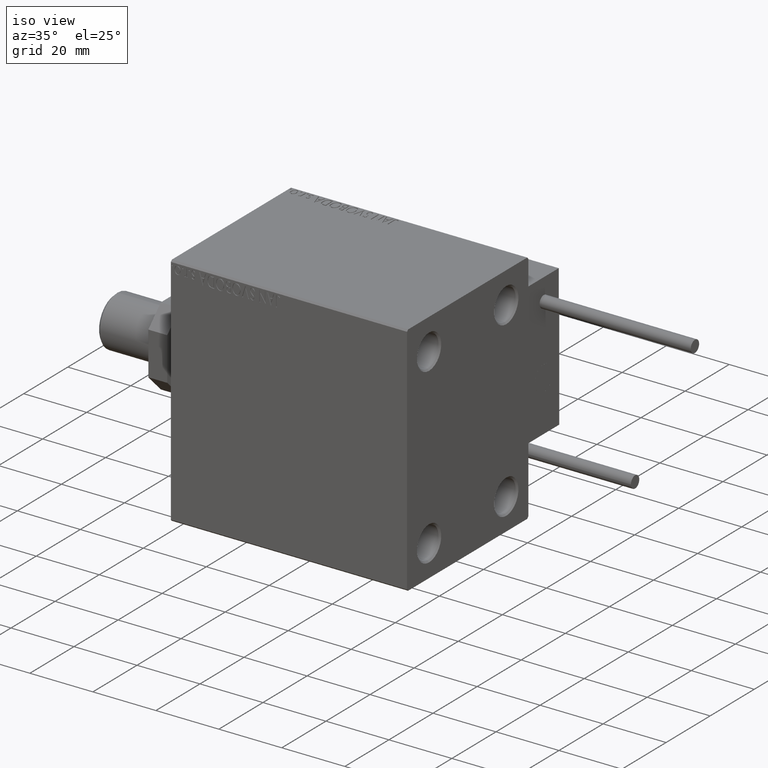
[diagram: clean part render]
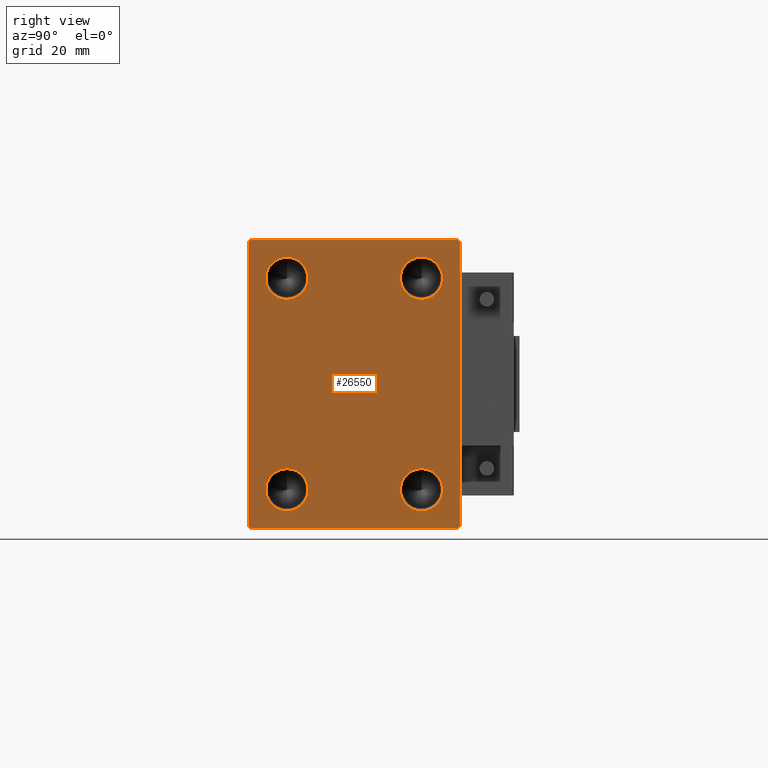
[diagram: tour spotlight — one face highlighted and labeled with its STEP entity id]
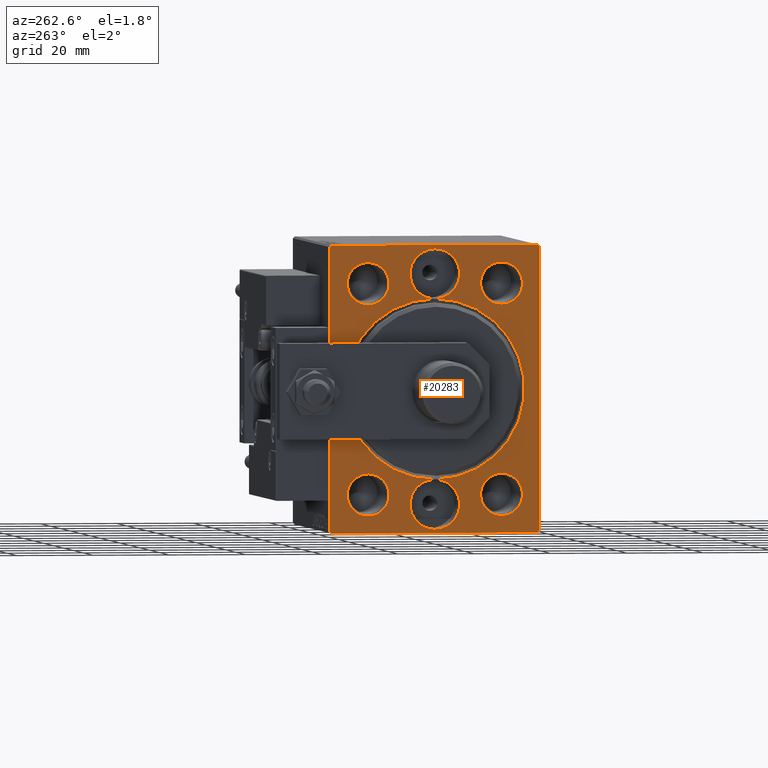
[diagram: tour spotlight — one face highlighted and labeled with its STEP entity id]
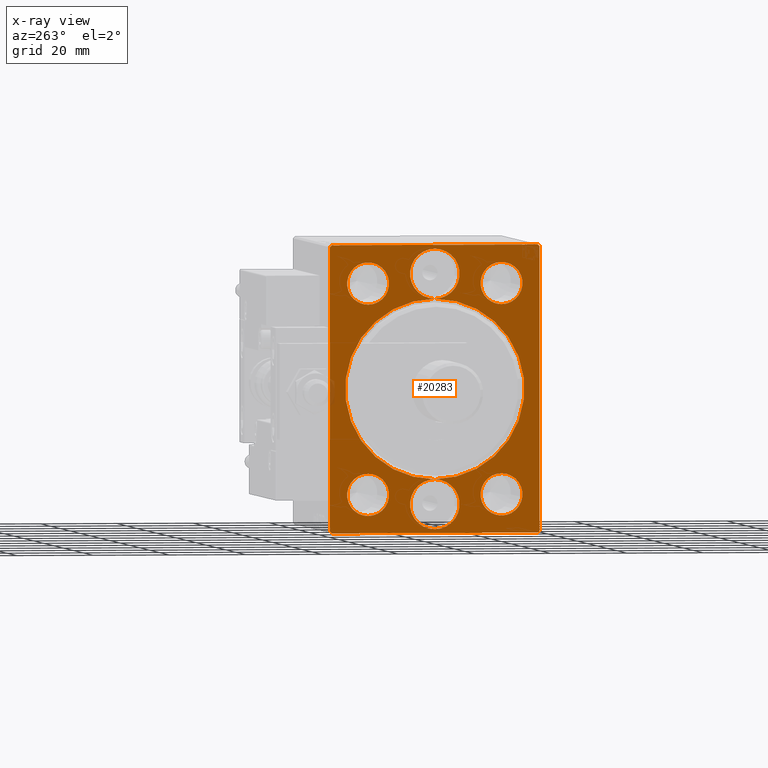
[diagram: x-ray of the same camera — body ghosted, this tour face saturated]
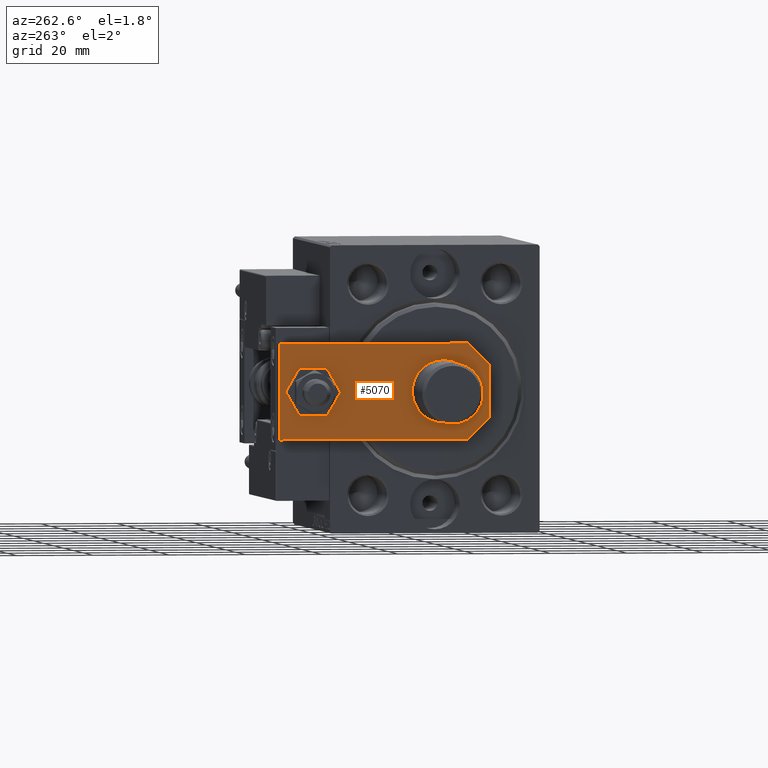
[diagram: tour spotlight — one face highlighted and labeled with its STEP entity id]
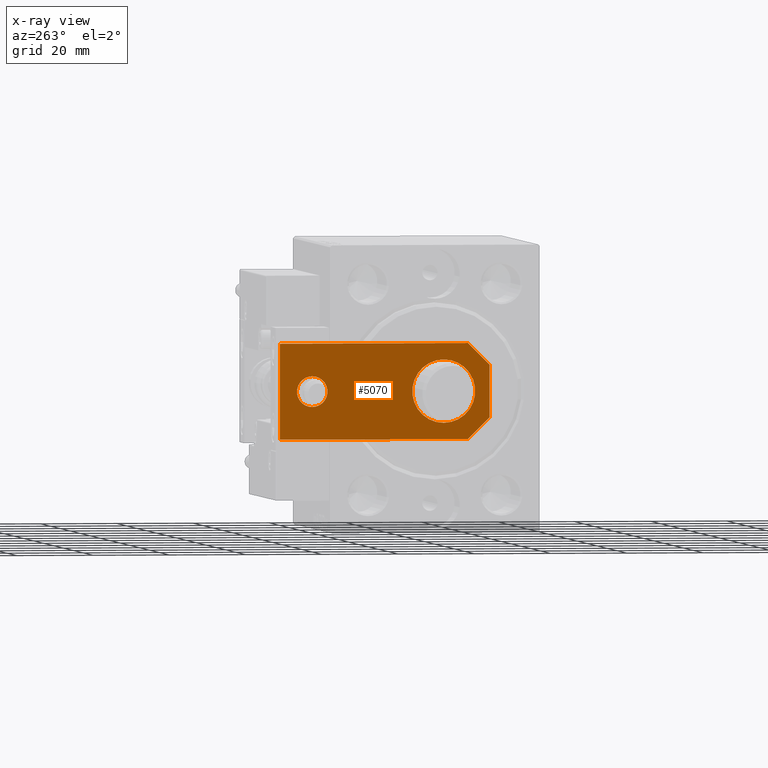
[diagram: x-ray of the same camera — body ghosted, this tour face saturated]
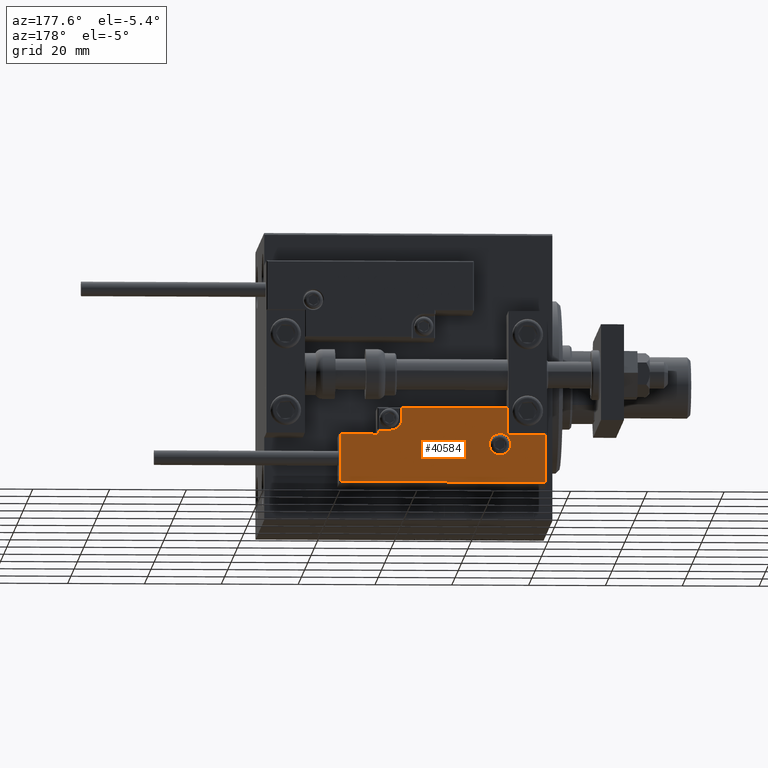
[diagram: tour spotlight — one face highlighted and labeled with its STEP entity id]
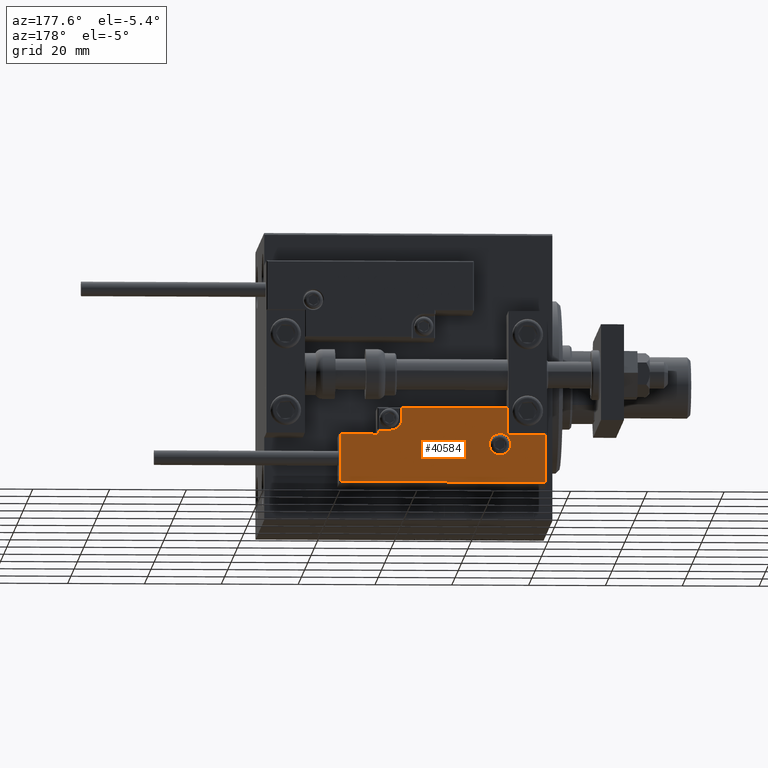
[diagram: tour spotlight — one face highlighted and labeled with its STEP entity id]
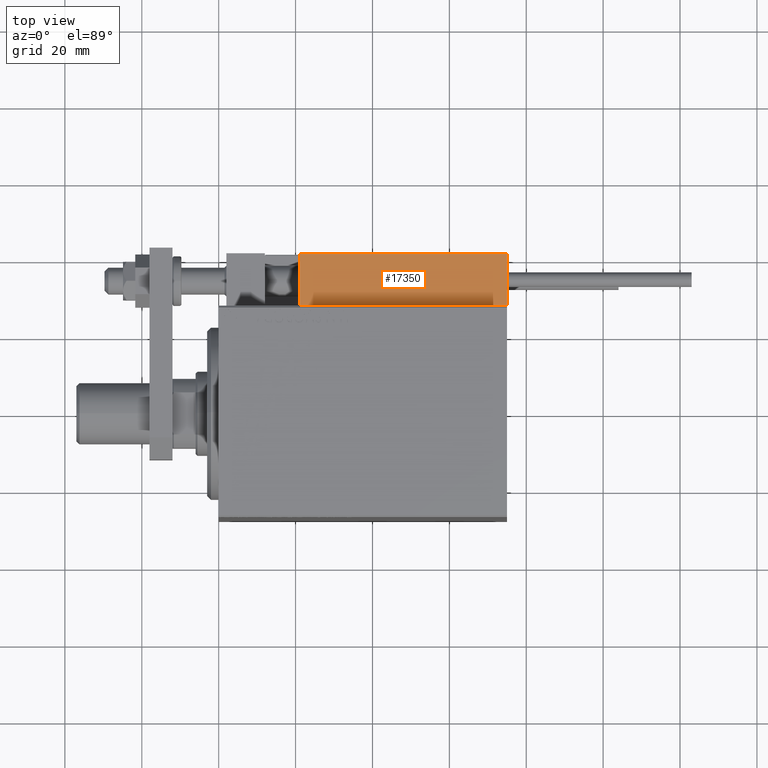
[diagram: tour spotlight — one face highlighted and labeled with its STEP entity id]
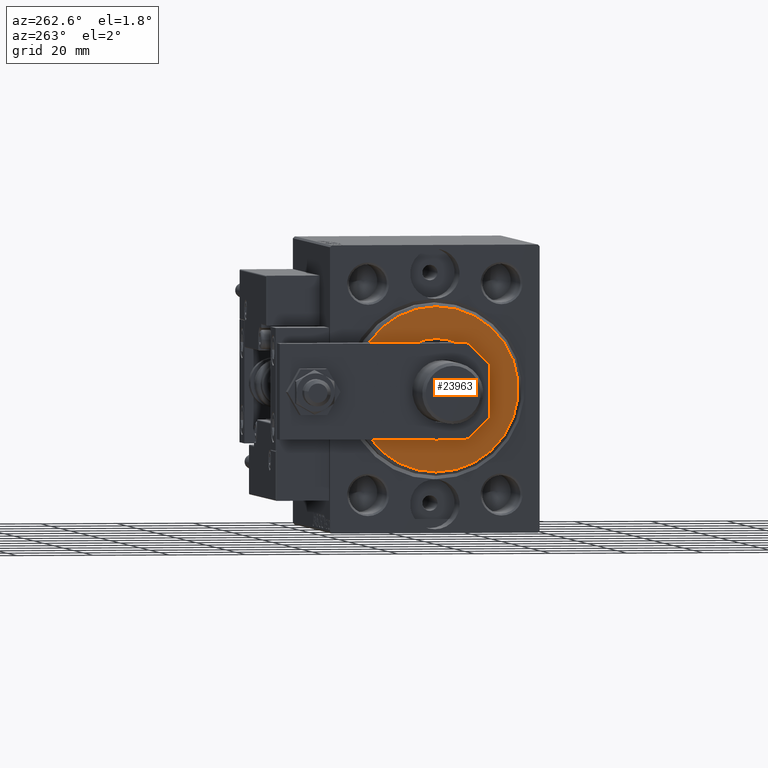
[diagram: tour spotlight — one face highlighted and labeled with its STEP entity id]
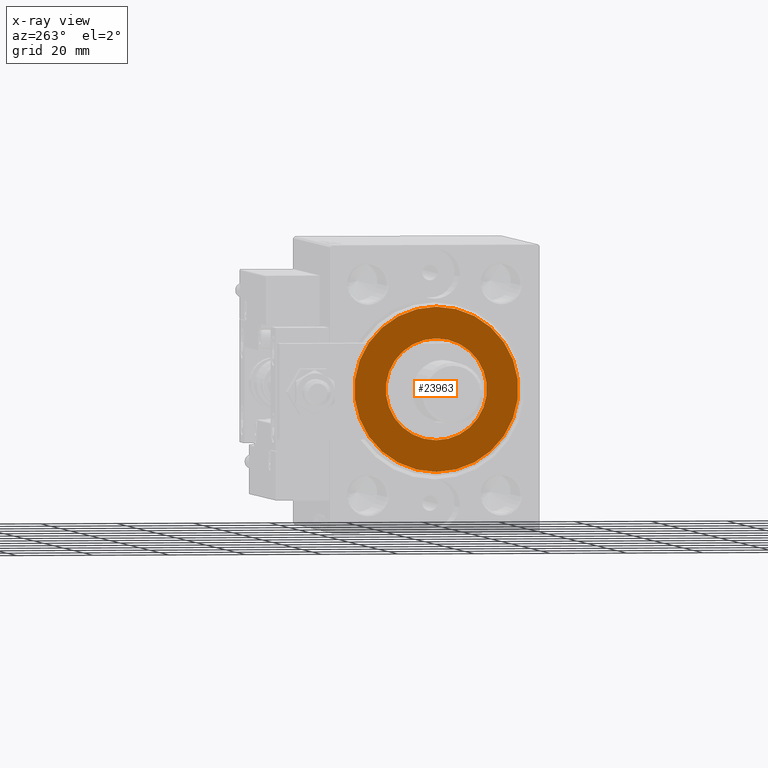
[diagram: x-ray of the same camera — body ghosted, this tour face saturated]
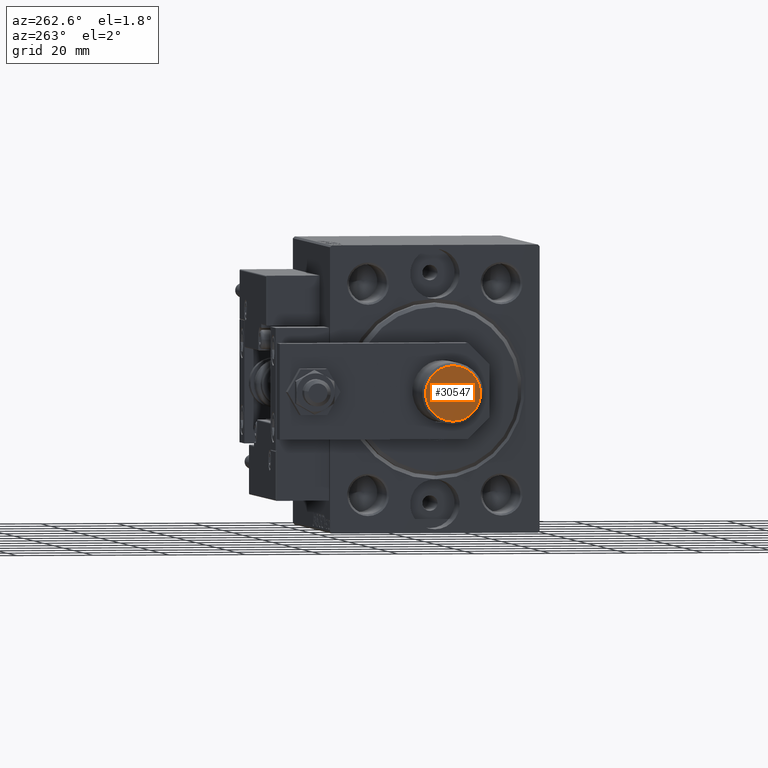
[diagram: tour spotlight — one face highlighted and labeled with its STEP entity id]
A machine part: a face-by-face anatomy tour. The part has 1327 B-rep faces; the first image is the clean iso view, then the 8 largest visible faces are spotlighted one at a time (largest first), each with its STEP entity span.

Face 1 — right view, entity #26550. In plain terms, the highlighted planar face has unit normal (1, 0, 0).
Definition (entity closure, byte-faithful):
#332 = FACE_BOUND ( 'NONE', #51249, .T. ) ;
#614 = AXIS2_PLACEMENT_3D ( 'NONE', #34828, #3287, #32952 ) ;
#838 = DIRECTION ( 'NONE',  ( 1.000000000000000000, -0.000000000000000000, -0.000000000000000000 ) ) ;
#948 = EDGE_CURVE ( 'NONE', #29463, #8864, #38856, .T. ) ;
#1772 = EDGE_LOOP ( 'NONE', ( #10626, #22608 ) ) ;
#2189 = EDGE_CURVE ( 'NONE', #37553, #8305, #41367, .T. ) ;
#2264 = DIRECTION ( 'NONE',  ( 0.000000000000000000, 0.000000000000000000, -1.000000000000000000 ) ) ;
#2878 = EDGE_CURVE ( 'NONE', #37914, #43459, #21032, .T. ) ;
#3085 = VECTOR ( 'NONE', #4262, 1000.000000000000000 ) ;
#3127 = AXIS2_PLACEMENT_3D ( 'NONE', #50705, #14479, #2264 ) ;
#3287 = DIRECTION ( 'NONE',  ( 1.000000000000000000, -0.000000000000000000, -0.000000000000000000 ) ) ;
#3457 = DIRECTION ( 'NONE',  ( 0.000000000000000000, 0.000000000000000000, -1.000000000000000000 ) ) ;
#3490 = LINE ( 'NONE', #6871, #28910 ) ;
#3731 = CARTESIAN_POINT ( 'NONE',  ( 75.00000000000000000, -17.50000000000000000, 21.99999999999997868 ) ) ;
#4208 = ORIENTED_EDGE ( 'NONE', *, *, #25615, .T. ) ;
#4262 = DIRECTION ( 'NONE',  ( 0.000000000000000000, -1.000000000000000000, -2.523234146875355998E-16 ) ) ;
#4360 = ORIENTED_EDGE ( 'NONE', *, *, #2878, .T. ) ;
#4517 = CARTESIAN_POINT ( 'NONE',  ( 75.00000000000000000, 27.49999999999999645, 37.50000000000000000 ) ) ;
#4807 = CARTESIAN_POINT ( 'NONE',  ( 75.00000000000000000, 17.50000000000000000, 21.99999999999999289 ) ) ;
#6378 = EDGE_LOOP ( 'NONE', ( #37897, #22049 ) ) ;
#6871 = CARTESIAN_POINT ( 'NONE',  ( 75.00000000000000000, 32.25000000000000000, -32.25000000000000000 ) ) ;
#7084 = CIRCLE ( 'NONE', #40357, 5.500000000000018652 ) ;
#7233 = CARTESIAN_POINT ( 'NONE',  ( 75.00000000000000000, -26.99999999999999645, -37.50000000000000000 ) ) ;
#8305 = VERTEX_POINT ( 'NONE', #21120 ) ;
#8396 = FACE_OUTER_BOUND ( 'NONE', #50806, .T. ) ;
#8864 = VERTEX_POINT ( 'NONE', #4807 ) ;
#10101 = EDGE_CURVE ( 'NONE', #39103, #23919, #49262, .T. ) ;
#10192 = AXIS2_PLACEMENT_3D ( 'NONE', #24063, #36279, #20641 ) ;
#10626 = ORIENTED_EDGE ( 'NONE', *, *, #948, .F. ) ;
#10904 = LINE ( 'NONE', #27581, #32861 ) ;
#11176 = CARTESIAN_POINT ( 'NONE',  ( 75.00000000000000000, 17.50000000000000000, -33.00000000000001421 ) ) ;
#11520 = DIRECTION ( 'NONE',  ( 1.000000000000000000, -0.000000000000000000, -0.000000000000000000 ) ) ;
#11614 = CARTESIAN_POINT ( 'NONE',  ( 75.00000000000000000, 17.50000000000000000, -21.99999999999997513 ) ) ;
#12233 = EDGE_LOOP ( 'NONE', ( #28092, #47597 ) ) ;
#12803 = CARTESIAN_POINT ( 'NONE',  ( 75.00000000000000000, 17.50000000000000000, -27.49999999999999645 ) ) ;
#12865 = DIRECTION ( 'NONE',  ( 1.000000000000000000, -0.000000000000000000, -0.000000000000000000 ) ) ;
#14381 = DIRECTION ( 'NONE',  ( 0.000000000000000000, 0.000000000000000000, -1.000000000000000000 ) ) ;
#14479 = DIRECTION ( 'NONE',  ( 1.000000000000000000, -0.000000000000000000, -0.000000000000000000 ) ) ;
#14697 = EDGE_CURVE ( 'NONE', #39587, #29868, #39207, .T. ) ;
#15225 = ORIENTED_EDGE ( 'NONE', *, *, #43482, .T. ) ;
#16216 = FACE_BOUND ( 'NONE', #12233, .T. ) ;
#16530 = DIRECTION ( 'NONE',  ( 1.000000000000000000, -0.000000000000000000, -0.000000000000000000 ) ) ;
#16607 = CARTESIAN_POINT ( 'NONE',  ( 75.00000000000000000, -32.24999999999997868, 32.24999999999997868 ) ) ;
#17262 = VECTOR ( 'NONE', #3457, 1000.000000000000000 ) ;
#17282 = VECTOR ( 'NONE', #17450, 1000.000000000000000 ) ;
#17450 = DIRECTION ( 'NONE',  ( 0.000000000000000000, 1.000000000000000000, 0.000000000000000000 ) ) ;
#18375 = VERTEX_POINT ( 'NONE', #7233 ) ;
#19117 = DIRECTION ( 'NONE',  ( 1.000000000000000000, 0.000000000000000000, 0.000000000000000000 ) ) ;
#19126 = CARTESIAN_POINT ( 'NONE',  ( 75.00000000000000000, -27.49999999999999645, 36.99999999999997158 ) ) ;
#19886 = DIRECTION ( 'NONE',  ( 0.000000000000000000, 0.000000000000000000, -1.000000000000000000 ) ) ;
#20141 = CARTESIAN_POINT ( 'NONE',  ( 75.00000000000000000, -17.50000000000000000, -27.49999999999999645 ) ) ;
#20436 = ORIENTED_EDGE ( 'NONE', *, *, #48350, .T. ) ;
#20641 = DIRECTION ( 'NONE',  ( 0.000000000000000000, 0.000000000000000000, -1.000000000000000000 ) ) ;
#20711 = CARTESIAN_POINT ( 'NONE',  ( 75.00000000000000000, 17.50000000000000000, 27.50000000000000000 ) ) ;
#20957 = DIRECTION ( 'NONE',  ( 0.000000000000000000, 0.000000000000000000, -1.000000000000000000 ) ) ;
#21032 = LINE ( 'NONE', #16607, #34772 ) ;
#21120 = CARTESIAN_POINT ( 'NONE',  ( 75.00000000000000000, -17.50000000000000000, 33.00000000000002842 ) ) ;
#22049 = ORIENTED_EDGE ( 'NONE', *, *, #10101, .F. ) ;
#22608 = ORIENTED_EDGE ( 'NONE', *, *, #26247, .F. ) ;
#23919 = VERTEX_POINT ( 'NONE', #11614 ) ;
#24063 = CARTESIAN_POINT ( 'NONE',  ( 75.00000000000000000, 17.50000000000000000, -27.49999999999999645 ) ) ;
#24317 = PLANE ( 'NONE',  #24802 ) ;
#24802 = AXIS2_PLACEMENT_3D ( 'NONE', #40184, #19117, #50901 ) ;
#25130 = EDGE_CURVE ( 'NONE', #46043, #37914, #40192, .T. ) ;
#25462 = AXIS2_PLACEMENT_3D ( 'NONE', #31326, #11520, #14381 ) ;
#25535 = AXIS2_PLACEMENT_3D ( 'NONE', #44150, #16530, #20957 ) ;
#25589 = CIRCLE ( 'NONE', #3127, 5.500000000000022204 ) ;
#25615 = EDGE_CURVE ( 'NONE', #18375, #42668, #32586, .T. ) ;
#26113 = EDGE_CURVE ( 'NONE', #8305, #37553, #25589, .T. ) ;
#26247 = EDGE_CURVE ( 'NONE', #8864, #29463, #40602, .T. ) ;
#26550 = ADVANCED_FACE ( 'NONE', ( #35275, #332, #16216, #48003, #8396 ), #24317, .T. ) ;
#27254 = CARTESIAN_POINT ( 'NONE',  ( 75.00000000000000000, 17.50000000000000000, 33.00000000000001421 ) ) ;
#27319 = AXIS2_PLACEMENT_3D ( 'NONE', #20711, #12865, #36607 ) ;
#27581 = CARTESIAN_POINT ( 'NONE',  ( 75.00000000000000000, -32.24999999999999289, -32.24999999999999289 ) ) ;
#28092 = ORIENTED_EDGE ( 'NONE', *, *, #38529, .F. ) ;
#28431 = ORIENTED_EDGE ( 'NONE', *, *, #14697, .T. ) ;
#28710 = DIRECTION ( 'NONE',  ( 1.000000000000000000, -0.000000000000000000, -0.000000000000000000 ) ) ;
#28731 = ORIENTED_EDGE ( 'NONE', *, *, #37812, .T. ) ;
#28844 = DIRECTION ( 'NONE',  ( 0.000000000000000000, -0.7071067811865474617, -0.7071067811865474617 ) ) ;
#28910 = VECTOR ( 'NONE', #35284, 1000.000000000000114 ) ;
#29463 = VERTEX_POINT ( 'NONE', #27254 ) ;
#29868 = VERTEX_POINT ( 'NONE', #33077 ) ;
#30016 = DIRECTION ( 'NONE',  ( 0.000000000000000000, 0.000000000000000000, -1.000000000000000000 ) ) ;
#31080 = LINE ( 'NONE', #46961, #17262 ) ;
#31160 = DIRECTION ( 'NONE',  ( -0.000000000000000000, -0.7071067811865474617, 0.7071067811865474617 ) ) ;
#31312 = CIRCLE ( 'NONE', #25462, 5.500000000000018652 ) ;
#31326 = CARTESIAN_POINT ( 'NONE',  ( 75.00000000000000000, -17.50000000000000000, -27.49999999999999645 ) ) ;
#31402 = DIRECTION ( 'NONE',  ( 0.000000000000000000, -9.251858538542971581E-17, 1.000000000000000000 ) ) ;
#31495 = DIRECTION ( 'NONE',  ( -0.000000000000000000, 0.7071067811865474617, -0.7071067811865474617 ) ) ;
#32543 = ORIENTED_EDGE ( 'NONE', *, *, #25130, .T. ) ;
#32586 = LINE ( 'NONE', #48450, #17282 ) ;
#32861 = VECTOR ( 'NONE', #31495, 1000.000000000000114 ) ;
#32952 = DIRECTION ( 'NONE',  ( 0.000000000000000000, 0.000000000000000000, -1.000000000000000000 ) ) ;
#33019 = CARTESIAN_POINT ( 'NONE',  ( 75.00000000000000000, -26.99999999999998224, 37.49999999999998579 ) ) ;
#33077 = CARTESIAN_POINT ( 'NONE',  ( 75.00000000000000000, 27.49999999999999645, 37.00000000000001421 ) ) ;
#34772 = VECTOR ( 'NONE', #28844, 1000.000000000000114 ) ;
#34828 = CARTESIAN_POINT ( 'NONE',  ( 75.00000000000000000, -17.50000000000000000, 27.50000000000000000 ) ) ;
#35275 = FACE_BOUND ( 'NONE', #1772, .T. ) ;
#35284 = DIRECTION ( 'NONE',  ( -0.000000000000000000, 0.7071067811865474617, 0.7071067811865474617 ) ) ;
#36161 = VECTOR ( 'NONE', #31402, 1000.000000000000000 ) ;
#36279 = DIRECTION ( 'NONE',  ( 1.000000000000000000, -0.000000000000000000, -0.000000000000000000 ) ) ;
#36607 = DIRECTION ( 'NONE',  ( 0.000000000000000000, 0.000000000000000000, -1.000000000000000000 ) ) ;
#37259 = EDGE_CURVE ( 'NONE', #29868, #46043, #42871, .T. ) ;
#37553 = VERTEX_POINT ( 'NONE', #3731 ) ;
#37812 = EDGE_CURVE ( 'NONE', #38369, #18375, #10904, .T. ) ;
#37897 = ORIENTED_EDGE ( 'NONE', *, *, #47422, .F. ) ;
#37914 = VERTEX_POINT ( 'NONE', #33019 ) ;
#38267 = CARTESIAN_POINT ( 'NONE',  ( 75.00000000000000000, 27.00000000000000355, -37.50000000000000000 ) ) ;
#38369 = VERTEX_POINT ( 'NONE', #50368 ) ;
#38529 = EDGE_CURVE ( 'NONE', #50994, #43439, #7084, .T. ) ;
#38856 = CIRCLE ( 'NONE', #25535, 5.500000000000001776 ) ;
#38932 = CIRCLE ( 'NONE', #48859, 5.500000000000018652 ) ;
#38981 = CARTESIAN_POINT ( 'NONE',  ( 75.00000000000000000, 32.25000000000000000, 32.25000000000000000 ) ) ;
#39103 = VERTEX_POINT ( 'NONE', #11176 ) ;
#39207 = LINE ( 'NONE', #43119, #36161 ) ;
#39434 = CARTESIAN_POINT ( 'NONE',  ( 75.00000000000000000, -17.50000000000000000, -33.00000000000001421 ) ) ;
#39587 = VERTEX_POINT ( 'NONE', #45897 ) ;
#40184 = CARTESIAN_POINT ( 'NONE',  ( 75.00000000000000000, 0.000000000000000000, 0.000000000000000000 ) ) ;
#40192 = LINE ( 'NONE', #4517, #3085 ) ;
#40357 = AXIS2_PLACEMENT_3D ( 'NONE', #20141, #838, #19886 ) ;
#40447 = EDGE_CURVE ( 'NONE', #43439, #50994, #31312, .T. ) ;
#40602 = CIRCLE ( 'NONE', #27319, 5.500000000000001776 ) ;
#41367 = CIRCLE ( 'NONE', #614, 5.500000000000022204 ) ;
#42668 = VERTEX_POINT ( 'NONE', #38267 ) ;
#42871 = LINE ( 'NONE', #38981, #45307 ) ;
#42909 = ORIENTED_EDGE ( 'NONE', *, *, #26113, .F. ) ;
#43119 = CARTESIAN_POINT ( 'NONE',  ( 75.00000000000000000, 27.50000000000000355, -37.50000000000000000 ) ) ;
#43439 = VERTEX_POINT ( 'NONE', #39434 ) ;
#43459 = VERTEX_POINT ( 'NONE', #19126 ) ;
#43482 = EDGE_CURVE ( 'NONE', #42668, #39587, #3490, .T. ) ;
#44035 = CARTESIAN_POINT ( 'NONE',  ( 75.00000000000000000, -17.50000000000000000, -21.99999999999997513 ) ) ;
#44150 = CARTESIAN_POINT ( 'NONE',  ( 75.00000000000000000, 17.50000000000000000, 27.50000000000000000 ) ) ;
#45307 = VECTOR ( 'NONE', #31160, 1000.000000000000114 ) ;
#45752 = CARTESIAN_POINT ( 'NONE',  ( 75.00000000000000000, 27.00000000000001066, 37.50000000000000000 ) ) ;
#45897 = CARTESIAN_POINT ( 'NONE',  ( 75.00000000000000000, 27.50000000000000355, -37.00000000000000000 ) ) ;
#46043 = VERTEX_POINT ( 'NONE', #45752 ) ;
#46564 = ORIENTED_EDGE ( 'NONE', *, *, #2189, .F. ) ;
#46961 = CARTESIAN_POINT ( 'NONE',  ( 75.00000000000000000, -27.49999999999999645, 37.49999999999998579 ) ) ;
#47422 = EDGE_CURVE ( 'NONE', #23919, #39103, #38932, .T. ) ;
#47597 = ORIENTED_EDGE ( 'NONE', *, *, #40447, .F. ) ;
#47766 = ORIENTED_EDGE ( 'NONE', *, *, #37259, .T. ) ;
#48003 = FACE_BOUND ( 'NONE', #6378, .T. ) ;
#48350 = EDGE_CURVE ( 'NONE', #43459, #38369, #31080, .T. ) ;
#48450 = CARTESIAN_POINT ( 'NONE',  ( 75.00000000000000000, -27.49999999999999645, -37.50000000000000000 ) ) ;
#48859 = AXIS2_PLACEMENT_3D ( 'NONE', #12803, #28710, #30016 ) ;
#49262 = CIRCLE ( 'NONE', #10192, 5.500000000000018652 ) ;
#50368 = CARTESIAN_POINT ( 'NONE',  ( 75.00000000000000000, -27.49999999999999645, -37.00000000000000000 ) ) ;
#50705 = CARTESIAN_POINT ( 'NONE',  ( 75.00000000000000000, -17.50000000000000000, 27.50000000000000000 ) ) ;
#50806 = EDGE_LOOP ( 'NONE', ( #32543, #4360, #20436, #28731, #4208, #15225, #28431, #47766 ) ) ;
#50901 = DIRECTION ( 'NONE',  ( 0.000000000000000000, 0.000000000000000000, -1.000000000000000000 ) ) ;
#50994 = VERTEX_POINT ( 'NONE', #44035 ) ;
#51249 = EDGE_LOOP ( 'NONE', ( #42909, #46564 ) ) ;

Face 2 — auxiliary view, entity #20283. An x-ray twin of the same camera follows (body ghosted, this face saturated) — the face is partly hidden behind the body. In plain terms, the highlighted planar face has unit normal (1, 0, 0).
Definition (entity closure, byte-faithful):
#105 = ORIENTED_EDGE ( 'NONE', *, *, #39140, .T. ) ;
#396 = AXIS2_PLACEMENT_3D ( 'NONE', #48486, #31620, #19878 ) ;
#479 = DIRECTION ( 'NONE',  ( 1.000000000000000000, 0.000000000000000000, 0.000000000000000000 ) ) ;
#512 = EDGE_LOOP ( 'NONE', ( #14035, #29022, #40044, #10950, #22475, #45379 ) ) ;
#643 = DIRECTION ( 'NONE',  ( 0.000000000000000000, 0.000000000000000000, -1.000000000000000000 ) ) ;
#751 = VECTOR ( 'NONE', #22271, 1000.000000000000000 ) ;
#888 = DIRECTION ( 'NONE',  ( 1.000000000000000000, 0.000000000000000000, 0.000000000000000000 ) ) ;
#987 = EDGE_CURVE ( 'NONE', #29952, #22750, #4732, .T. ) ;
#991 = CARTESIAN_POINT ( 'NONE',  ( 0.000000000000000000, 27.00000000000000355, -37.50000000000000000 ) ) ;
#1262 = CARTESIAN_POINT ( 'NONE',  ( 0.000000000000000000, 0.000000000000000000, -30.00000000000000000 ) ) ;
#1433 = LINE ( 'NONE', #19506, #20435 ) ;
#1797 = ORIENTED_EDGE ( 'NONE', *, *, #51290, .F. ) ;
#2299 = VERTEX_POINT ( 'NONE', #4568 ) ;
#3343 = CARTESIAN_POINT ( 'NONE',  ( 0.000000000000000000, -17.50000000000000000, 21.99999999999998224 ) ) ;
#3766 = EDGE_CURVE ( 'NONE', #29764, #46180, #47976, .T. ) ;
#4004 = CIRCLE ( 'NONE', #16483, 23.50000000000000355 ) ;
#4301 = CARTESIAN_POINT ( 'NONE',  ( 0.000000000000000000, 17.50000000000000000, 27.50000000000000000 ) ) ;
#4568 = CARTESIAN_POINT ( 'NONE',  ( 0.000000000000000000, -27.49999999999999645, 36.99999999999997158 ) ) ;
#4732 = CIRCLE ( 'NONE', #16374, 5.500000000000022204 ) ;
#6038 = FACE_BOUND ( 'NONE', #10526, .T. ) ;
#6291 = PLANE ( 'NONE',  #13033 ) ;
#6312 = VERTEX_POINT ( 'NONE', #50006 ) ;
#7206 = LINE ( 'NONE', #43167, #48883 ) ;
#7246 = VERTEX_POINT ( 'NONE', #38118 ) ;
#7483 = VERTEX_POINT ( 'NONE', #991 ) ;
#8003 = ORIENTED_EDGE ( 'NONE', *, *, #39058, .F. ) ;
#8416 = CARTESIAN_POINT ( 'NONE',  ( 0.000000000000000000, 27.50000000000000355, -37.00000000000000000 ) ) ;
#8425 = DIRECTION ( 'NONE',  ( 0.000000000000000000, -0.7071067811865474617, -0.7071067811865474617 ) ) ;
#8711 = DIRECTION ( 'NONE',  ( 0.000000000000000000, 0.000000000000000000, 1.000000000000000000 ) ) ;
#8737 = EDGE_CURVE ( 'NONE', #6312, #35832, #43427, .T. ) ;
#8903 = CIRCLE ( 'NONE', #38063, 6.499999999999999112 ) ;
#9531 = LINE ( 'NONE', #36653, #47123 ) ;
#9943 = FACE_BOUND ( 'NONE', #50345, .T. ) ;
#9957 = CARTESIAN_POINT ( 'NONE',  ( 0.000000000000000000, 7.960204194457798435E-16, -36.50000000000000000 ) ) ;
#10162 = EDGE_LOOP ( 'NONE', ( #11180, #51437 ) ) ;
#10526 = EDGE_LOOP ( 'NONE', ( #24425, #21781 ) ) ;
#10950 = ORIENTED_EDGE ( 'NONE', *, *, #3766, .T. ) ;
#11180 = ORIENTED_EDGE ( 'NONE', *, *, #44237, .T. ) ;
#12021 = CIRCLE ( 'NONE', #46995, 5.500000000000001776 ) ;
#12237 = CARTESIAN_POINT ( 'NONE',  ( 0.000000000000000000, 0.000000000000000000, 36.50000000000000000 ) ) ;
#12245 = CARTESIAN_POINT ( 'NONE',  ( 0.000000000000000000, -26.99999999999999645, -37.50000000000000000 ) ) ;
#12408 = CIRCLE ( 'NONE', #41538, 6.499999999999999112 ) ;
#12609 = DIRECTION ( 'NONE',  ( 0.000000000000000000, 0.000000000000000000, 1.000000000000000000 ) ) ;
#13033 = AXIS2_PLACEMENT_3D ( 'NONE', #38089, #37222, #36958 ) ;
#13128 = DIRECTION ( 'NONE',  ( -1.000000000000000000, 0.000000000000000000, 0.000000000000000000 ) ) ;
#14035 = ORIENTED_EDGE ( 'NONE', *, *, #48626, .T. ) ;
#14238 = CARTESIAN_POINT ( 'NONE',  ( 0.000000000000000000, 27.49999999999999645, 37.50000000000000000 ) ) ;
#14735 = CARTESIAN_POINT ( 'NONE',  ( 0.000000000000000000, 0.000000000000000000, 23.50000000000000355 ) ) ;
#15478 = ORIENTED_EDGE ( 'NONE', *, *, #45043, .T. ) ;
#15524 = CARTESIAN_POINT ( 'NONE',  ( 0.000000000000000000, 27.49999999999999645, 37.00000000000001421 ) ) ;
#15548 = AXIS2_PLACEMENT_3D ( 'NONE', #25389, #33732, #21744 ) ;
#15589 = DIRECTION ( 'NONE',  ( 1.000000000000000000, 0.000000000000000000, 0.000000000000000000 ) ) ;
#16270 = DIRECTION ( 'NONE',  ( 0.000000000000000000, 0.000000000000000000, -1.000000000000000000 ) ) ;
#16322 = AXIS2_PLACEMENT_3D ( 'NONE', #16535, #40240, #12609 ) ;
#16374 = AXIS2_PLACEMENT_3D ( 'NONE', #47800, #20701, #32180 ) ;
#16398 = CARTESIAN_POINT ( 'NONE',  ( 0.000000000000000000, 17.50000000000000000, 27.50000000000000000 ) ) ;
#16483 = AXIS2_PLACEMENT_3D ( 'NONE', #38828, #50282, #38575 ) ;
#16535 = CARTESIAN_POINT ( 'NONE',  ( 0.000000000000000000, 0.000000000000000000, 30.00000000000000000 ) ) ;
#16776 = DIRECTION ( 'NONE',  ( 0.000000000000000000, 0.000000000000000000, -1.000000000000000000 ) ) ;
#16800 = DIRECTION ( 'NONE',  ( -0.000000000000000000, -0.7071067811865474617, 0.7071067811865474617 ) ) ;
#17875 = DIRECTION ( 'NONE',  ( 0.000000000000000000, 0.000000000000000000, -1.000000000000000000 ) ) ;
#18630 = EDGE_CURVE ( 'NONE', #7246, #43896, #9531, .T. ) ;
#19089 = CIRCLE ( 'NONE', #38206, 5.500000000000018652 ) ;
#19187 = VERTEX_POINT ( 'NONE', #41457 ) ;
#19506 = CARTESIAN_POINT ( 'NONE',  ( 0.000000000000000000, -26.99999999999999645, -37.50000000000000000 ) ) ;
#19656 = EDGE_CURVE ( 'NONE', #46180, #23369, #45475, .T. ) ;
#19682 = DIRECTION ( 'NONE',  ( 1.000000000000000000, 0.000000000000000000, 0.000000000000000000 ) ) ;
#19847 = AXIS2_PLACEMENT_3D ( 'NONE', #43394, #19682, #16270 ) ;
#19878 = DIRECTION ( 'NONE',  ( 0.000000000000000000, 0.000000000000000000, 1.000000000000000000 ) ) ;
#20283 = ADVANCED_FACE ( 'NONE', ( #45881, #9943, #41722, #6038, #41977, #33918 ), #6291, .F. ) ;
#20435 = VECTOR ( 'NONE', #16800, 1000.000000000000114 ) ;
#20580 = CIRCLE ( 'NONE', #15548, 5.500000000000018652 ) ;
#20701 = DIRECTION ( 'NONE',  ( 1.000000000000000000, 0.000000000000000000, 0.000000000000000000 ) ) ;
#21179 = CIRCLE ( 'NONE', #396, 6.499999999999999112 ) ;
#21616 = CIRCLE ( 'NONE', #31597, 5.500000000000022204 ) ;
#21744 = DIRECTION ( 'NONE',  ( 0.000000000000000000, 0.000000000000000000, -1.000000000000000000 ) ) ;
#21781 = ORIENTED_EDGE ( 'NONE', *, *, #36894, .T. ) ;
#22271 = DIRECTION ( 'NONE',  ( 0.000000000000000000, 0.000000000000000000, -1.000000000000000000 ) ) ;
#22475 = ORIENTED_EDGE ( 'NONE', *, *, #24030, .F. ) ;
#22750 = VERTEX_POINT ( 'NONE', #28510 ) ;
#22785 = LINE ( 'NONE', #23561, #36247 ) ;
#23039 = DIRECTION ( 'NONE',  ( 0.000000000000000000, -9.251858538542971581E-17, 1.000000000000000000 ) ) ;
#23369 = VERTEX_POINT ( 'NONE', #12237 ) ;
#23374 = DIRECTION ( 'NONE',  ( -0.000000000000000000, 0.7071067811865474617, 0.7071067811865474617 ) ) ;
#23561 = CARTESIAN_POINT ( 'NONE',  ( 0.000000000000000000, 27.50000000000000355, -37.50000000000000000 ) ) ;
#23708 = EDGE_LOOP ( 'NONE', ( #1797, #48729, #25074, #45553, #29715, #15478, #8003, #105 ) ) ;
#24030 = EDGE_CURVE ( 'NONE', #23369, #46180, #8903, .T. ) ;
#24202 = CARTESIAN_POINT ( 'NONE',  ( 0.000000000000000000, 0.000000000000000000, 0.000000000000000000 ) ) ;
#24425 = ORIENTED_EDGE ( 'NONE', *, *, #8737, .T. ) ;
#24457 = DIRECTION ( 'NONE',  ( 0.000000000000000000, 0.000000000000000000, -1.000000000000000000 ) ) ;
#25074 = ORIENTED_EDGE ( 'NONE', *, *, #36242, .F. ) ;
#25203 = CARTESIAN_POINT ( 'NONE',  ( 0.000000000000000000, -17.50000000000000000, -33.00000000000001421 ) ) ;
#25389 = CARTESIAN_POINT ( 'NONE',  ( 0.000000000000000000, -17.50000000000000000, -27.49999999999999645 ) ) ;
#25696 = DIRECTION ( 'NONE',  ( -0.000000000000000000, 0.7071067811865474617, -0.7071067811865474617 ) ) ;
#25722 = EDGE_CURVE ( 'NONE', #2299, #32708, #7206, .T. ) ;
#26439 = VECTOR ( 'NONE', #8425, 1000.000000000000114 ) ;
#26968 = CARTESIAN_POINT ( 'NONE',  ( 0.000000000000000000, -26.99999999999998224, 37.49999999999998579 ) ) ;
#28250 = EDGE_CURVE ( 'NONE', #29523, #35375, #19089, .T. ) ;
#28509 = DIRECTION ( 'NONE',  ( 1.000000000000000000, 0.000000000000000000, 0.000000000000000000 ) ) ;
#28510 = CARTESIAN_POINT ( 'NONE',  ( 0.000000000000000000, -17.50000000000000000, 33.00000000000002132 ) ) ;
#28857 = DIRECTION ( 'NONE',  ( 0.000000000000000000, 0.000000000000000000, -1.000000000000000000 ) ) ;
#28993 = DIRECTION ( 'NONE',  ( 0.000000000000000000, 0.000000000000000000, -1.000000000000000000 ) ) ;
#29010 = EDGE_CURVE ( 'NONE', #29764, #32098, #12408, .T. ) ;
#29022 = ORIENTED_EDGE ( 'NONE', *, *, #37528, .F. ) ;
#29472 = VECTOR ( 'NONE', #49933, 1000.000000000000000 ) ;
#29523 = VERTEX_POINT ( 'NONE', #32434 ) ;
#29553 = LINE ( 'NONE', #49336, #751 ) ;
#29596 = EDGE_CURVE ( 'NONE', #22750, #29952, #21616, .T. ) ;
#29715 = ORIENTED_EDGE ( 'NONE', *, *, #39400, .F. ) ;
#29764 = VERTEX_POINT ( 'NONE', #47672 ) ;
#29952 = VERTEX_POINT ( 'NONE', #3343 ) ;
#31007 = VERTEX_POINT ( 'NONE', #12245 ) ;
#31302 = CARTESIAN_POINT ( 'NONE',  ( 0.000000000000000000, 17.50000000000000000, 21.99999999999999645 ) ) ;
#31499 = CIRCLE ( 'NONE', #19847, 5.500000000000018652 ) ;
#31597 = AXIS2_PLACEMENT_3D ( 'NONE', #43641, #888, #16776 ) ;
#31620 = DIRECTION ( 'NONE',  ( -1.000000000000000000, 0.000000000000000000, 0.000000000000000000 ) ) ;
#31691 = CARTESIAN_POINT ( 'NONE',  ( 0.000000000000000000, -27.49999999999999645, -37.00000000000000000 ) ) ;
#32098 = VERTEX_POINT ( 'NONE', #9957 ) ;
#32180 = DIRECTION ( 'NONE',  ( 0.000000000000000000, 0.000000000000000000, -1.000000000000000000 ) ) ;
#32301 = DIRECTION ( 'NONE',  ( -1.000000000000000000, 0.000000000000000000, 0.000000000000000000 ) ) ;
#32401 = DIRECTION ( 'NONE',  ( 1.000000000000000000, 0.000000000000000000, 0.000000000000000000 ) ) ;
#32434 = CARTESIAN_POINT ( 'NONE',  ( 0.000000000000000000, -17.50000000000000000, -21.99999999999997868 ) ) ;
#32708 = VERTEX_POINT ( 'NONE', #26968 ) ;
#33037 = CARTESIAN_POINT ( 'NONE',  ( 0.000000000000000000, -17.50000000000000000, -27.49999999999999645 ) ) ;
#33092 = CIRCLE ( 'NONE', #41412, 5.500000000000018652 ) ;
#33241 = ORIENTED_EDGE ( 'NONE', *, *, #987, .T. ) ;
#33732 = DIRECTION ( 'NONE',  ( 1.000000000000000000, 0.000000000000000000, 0.000000000000000000 ) ) ;
#33760 = VECTOR ( 'NONE', #42452, 1000.000000000000000 ) ;
#33918 = FACE_OUTER_BOUND ( 'NONE', #23708, .T. ) ;
#34329 = LINE ( 'NONE', #14238, #29472 ) ;
#34904 = CARTESIAN_POINT ( 'NONE',  ( 0.000000000000000000, 17.50000000000000000, -33.00000000000001421 ) ) ;
#35375 = VERTEX_POINT ( 'NONE', #25203 ) ;
#35715 = ORIENTED_EDGE ( 'NONE', *, *, #47239, .T. ) ;
#35832 = VERTEX_POINT ( 'NONE', #31302 ) ;
#36242 = EDGE_CURVE ( 'NONE', #7246, #32708, #34329, .T. ) ;
#36247 = VECTOR ( 'NONE', #23039, 1000.000000000000000 ) ;
#36458 = DIRECTION ( 'NONE',  ( 0.000000000000000000, 0.000000000000000000, 1.000000000000000000 ) ) ;
#36653 = CARTESIAN_POINT ( 'NONE',  ( 0.000000000000000000, 27.00000000000001066, 37.50000000000000000 ) ) ;
#36894 = EDGE_CURVE ( 'NONE', #35832, #6312, #12021, .T. ) ;
#36958 = DIRECTION ( 'NONE',  ( 0.000000000000000000, 0.000000000000000000, -1.000000000000000000 ) ) ;
#37222 = DIRECTION ( 'NONE',  ( 1.000000000000000000, 0.000000000000000000, 0.000000000000000000 ) ) ;
#37528 = EDGE_CURVE ( 'NONE', #32098, #29764, #21179, .T. ) ;
#38063 = AXIS2_PLACEMENT_3D ( 'NONE', #48820, #13128, #8711 ) ;
#38089 = CARTESIAN_POINT ( 'NONE',  ( 0.000000000000000000, 0.000000000000000000, 0.000000000000000000 ) ) ;
#38118 = CARTESIAN_POINT ( 'NONE',  ( 0.000000000000000000, 27.00000000000001066, 37.50000000000000000 ) ) ;
#38206 = AXIS2_PLACEMENT_3D ( 'NONE', #33037, #479, #28857 ) ;
#38545 = LINE ( 'NONE', #41931, #33760 ) ;
#38575 = DIRECTION ( 'NONE',  ( 0.000000000000000000, 0.000000000000000000, -1.000000000000000000 ) ) ;
#38828 = CARTESIAN_POINT ( 'NONE',  ( 0.000000000000000000, 0.000000000000000000, 0.000000000000000000 ) ) ;
#38985 = VERTEX_POINT ( 'NONE', #34904 ) ;
#39058 = EDGE_CURVE ( 'NONE', #31007, #7483, #38545, .T. ) ;
#39140 = EDGE_CURVE ( 'NONE', #31007, #47054, #1433, .T. ) ;
#39400 = EDGE_CURVE ( 'NONE', #44382, #43896, #22785, .T. ) ;
#39767 = AXIS2_PLACEMENT_3D ( 'NONE', #24202, #15589, #24457 ) ;
#40044 = ORIENTED_EDGE ( 'NONE', *, *, #29010, .F. ) ;
#40109 = DIRECTION ( 'NONE',  ( 1.000000000000000000, 0.000000000000000000, 0.000000000000000000 ) ) ;
#40240 = DIRECTION ( 'NONE',  ( -1.000000000000000000, 0.000000000000000000, 0.000000000000000000 ) ) ;
#40460 = LINE ( 'NONE', #44614, #26439 ) ;
#41412 = AXIS2_PLACEMENT_3D ( 'NONE', #45123, #32401, #28993 ) ;
#41457 = CARTESIAN_POINT ( 'NONE',  ( 0.000000000000000000, 17.50000000000000000, -21.99999999999997868 ) ) ;
#41538 = AXIS2_PLACEMENT_3D ( 'NONE', #1262, #32301, #36458 ) ;
#41722 = FACE_BOUND ( 'NONE', #48920, .T. ) ;
#41931 = CARTESIAN_POINT ( 'NONE',  ( 0.000000000000000000, -27.49999999999999645, -37.50000000000000000 ) ) ;
#41977 = FACE_BOUND ( 'NONE', #10162, .T. ) ;
#42452 = DIRECTION ( 'NONE',  ( 0.000000000000000000, 1.000000000000000000, 0.000000000000000000 ) ) ;
#43167 = CARTESIAN_POINT ( 'NONE',  ( 0.000000000000000000, -27.49999999999999645, 36.99999999999997158 ) ) ;
#43394 = CARTESIAN_POINT ( 'NONE',  ( 0.000000000000000000, 17.50000000000000000, -27.49999999999999645 ) ) ;
#43427 = CIRCLE ( 'NONE', #44259, 5.500000000000001776 ) ;
#43641 = CARTESIAN_POINT ( 'NONE',  ( 0.000000000000000000, -17.50000000000000000, 27.50000000000000000 ) ) ;
#43896 = VERTEX_POINT ( 'NONE', #15524 ) ;
#44237 = EDGE_CURVE ( 'NONE', #19187, #38985, #33092, .T. ) ;
#44259 = AXIS2_PLACEMENT_3D ( 'NONE', #4301, #28509, #643 ) ;
#44382 = VERTEX_POINT ( 'NONE', #8416 ) ;
#44614 = CARTESIAN_POINT ( 'NONE',  ( 0.000000000000000000, 27.50000000000000355, -37.00000000000000000 ) ) ;
#45043 = EDGE_CURVE ( 'NONE', #44382, #7483, #40460, .T. ) ;
#45123 = CARTESIAN_POINT ( 'NONE',  ( 0.000000000000000000, 17.50000000000000000, -27.49999999999999645 ) ) ;
#45379 = ORIENTED_EDGE ( 'NONE', *, *, #19656, .F. ) ;
#45475 = CIRCLE ( 'NONE', #16322, 6.499999999999999112 ) ;
#45553 = ORIENTED_EDGE ( 'NONE', *, *, #18630, .T. ) ;
#45881 = FACE_BOUND ( 'NONE', #512, .T. ) ;
#46180 = VERTEX_POINT ( 'NONE', #14735 ) ;
#46995 = AXIS2_PLACEMENT_3D ( 'NONE', #16398, #40109, #17875 ) ;
#47054 = VERTEX_POINT ( 'NONE', #31691 ) ;
#47123 = VECTOR ( 'NONE', #25696, 1000.000000000000114 ) ;
#47239 = EDGE_CURVE ( 'NONE', #35375, #29523, #20580, .T. ) ;
#47536 = ORIENTED_EDGE ( 'NONE', *, *, #28250, .T. ) ;
#47672 = CARTESIAN_POINT ( 'NONE',  ( 0.000000000000000000, 0.000000000000000000, -23.50000000000000355 ) ) ;
#47800 = CARTESIAN_POINT ( 'NONE',  ( 0.000000000000000000, -17.50000000000000000, 27.50000000000000000 ) ) ;
#47976 = CIRCLE ( 'NONE', #39767, 23.50000000000000355 ) ;
#48486 = CARTESIAN_POINT ( 'NONE',  ( 0.000000000000000000, 0.000000000000000000, -30.00000000000000000 ) ) ;
#48532 = ORIENTED_EDGE ( 'NONE', *, *, #29596, .T. ) ;
#48626 = EDGE_CURVE ( 'NONE', #46180, #29764, #4004, .T. ) ;
#48729 = ORIENTED_EDGE ( 'NONE', *, *, #25722, .T. ) ;
#48820 = CARTESIAN_POINT ( 'NONE',  ( 0.000000000000000000, 0.000000000000000000, 30.00000000000000000 ) ) ;
#48883 = VECTOR ( 'NONE', #23374, 1000.000000000000114 ) ;
#48920 = EDGE_LOOP ( 'NONE', ( #48532, #33241 ) ) ;
#49336 = CARTESIAN_POINT ( 'NONE',  ( 0.000000000000000000, -27.49999999999999645, 37.49999999999998579 ) ) ;
#49933 = DIRECTION ( 'NONE',  ( 0.000000000000000000, -1.000000000000000000, -2.523234146875355998E-16 ) ) ;
#50006 = CARTESIAN_POINT ( 'NONE',  ( 0.000000000000000000, 17.50000000000000000, 33.00000000000000711 ) ) ;
#50227 = EDGE_CURVE ( 'NONE', #38985, #19187, #31499, .T. ) ;
#50282 = DIRECTION ( 'NONE',  ( 1.000000000000000000, 0.000000000000000000, 0.000000000000000000 ) ) ;
#50345 = EDGE_LOOP ( 'NONE', ( #47536, #35715 ) ) ;
#51290 = EDGE_CURVE ( 'NONE', #2299, #47054, #29553, .T. ) ;
#51437 = ORIENTED_EDGE ( 'NONE', *, *, #50227, .T. ) ;

Face 3 — auxiliary view, entity #5070. An x-ray twin of the same camera follows (body ghosted, this face saturated) — the face is partly hidden behind the body. In plain terms, the highlighted planar face has unit normal (-1, -0, 0).
Definition (entity closure, byte-faithful):
#11 = VERTEX_POINT ( 'NONE', #49774 ) ;
#513 = CARTESIAN_POINT ( 'NONE',  ( -9.629649721936179265E-32, 11.99999999999999645, 6.000000000000000000 ) ) ;
#1934 = CARTESIAN_POINT ( 'NONE',  ( -3.420000000000013696, -3.420000000000006146, 6.000000000000000000 ) ) ;
#2007 = CARTESIAN_POINT ( 'NONE',  ( 12.50000000000000000, 55.00000000000000000, 6.000000000000000000 ) ) ;
#2186 = LINE ( 'NONE', #1934, #42197 ) ;
#2510 = ORIENTED_EDGE ( 'NONE', *, *, #44795, .F. ) ;
#2928 = VERTEX_POINT ( 'NONE', #29103 ) ;
#2987 = FACE_OUTER_BOUND ( 'NONE', #29199, .T. ) ;
#3474 = DIRECTION ( 'NONE',  ( 0.000000000000000000, 0.000000000000000000, 1.000000000000000000 ) ) ;
#3845 = VERTEX_POINT ( 'NONE', #9567 ) ;
#4644 = DIRECTION ( 'NONE',  ( 1.000000000000000000, 0.000000000000000000, 0.000000000000000000 ) ) ;
#5070 = ADVANCED_FACE ( 'NONE', ( #42341, #2987, #18106 ), #22545, .T. ) ;
#6363 = AXIS2_PLACEMENT_3D ( 'NONE', #513, #20319, #9541 ) ;
#6406 = EDGE_CURVE ( 'NONE', #44261, #50760, #10164, .T. ) ;
#6580 = VERTEX_POINT ( 'NONE', #25993 ) ;
#9122 = VERTEX_POINT ( 'NONE', #35263 ) ;
#9201 = CARTESIAN_POINT ( 'NONE',  ( 6.839999999999998970, 4.814824860968089633E-32, 6.000000000000000000 ) ) ;
#9541 = DIRECTION ( 'NONE',  ( 1.000000000000000000, 0.000000000000000000, 0.000000000000000000 ) ) ;
#9546 = CARTESIAN_POINT ( 'NONE',  ( -12.49999999999999822, 55.00000000000000000, 6.000000000000000000 ) ) ;
#9567 = CARTESIAN_POINT ( 'NONE',  ( -6.840000000000012292, 4.814824860968089633E-32, 6.000000000000000000 ) ) ;
#10164 = CIRCLE ( 'NONE', #39291, 4.000000000000000888 ) ;
#10547 = CARTESIAN_POINT ( 'NONE',  ( 0.000000000000000000, 0.000000000000000000, 6.000000000000000000 ) ) ;
#10595 = DIRECTION ( 'NONE',  ( -6.308085367188389994E-17, 1.000000000000000000, 0.000000000000000000 ) ) ;
#12158 = EDGE_CURVE ( 'NONE', #9122, #41167, #27736, .T. ) ;
#13570 = CARTESIAN_POINT ( 'NONE',  ( -12.50000000000000355, 4.814824860968089633E-32, 6.000000000000000000 ) ) ;
#13972 = DIRECTION ( 'NONE',  ( -1.000000000000000000, 0.000000000000000000, 0.000000000000000000 ) ) ;
#14705 = VECTOR ( 'NONE', #33514, 1000.000000000000114 ) ;
#16657 = DIRECTION ( 'NONE',  ( -9.462128050782584375E-17, -1.000000000000000000, 0.000000000000000000 ) ) ;
#17752 = VECTOR ( 'NONE', #13972, 1000.000000000000000 ) ;
#18106 = FACE_BOUND ( 'NONE', #18352, .T. ) ;
#18352 = EDGE_LOOP ( 'NONE', ( #22828, #34491 ) ) ;
#18909 = AXIS2_PLACEMENT_3D ( 'NONE', #10547, #30877, #30357 ) ;
#19468 = EDGE_CURVE ( 'NONE', #41167, #9122, #47969, .T. ) ;
#20044 = ORIENTED_EDGE ( 'NONE', *, *, #50960, .T. ) ;
#20319 = DIRECTION ( 'NONE',  ( 0.000000000000000000, 0.000000000000000000, 1.000000000000000000 ) ) ;
#20534 = DIRECTION ( 'NONE',  ( 0.000000000000000000, 0.000000000000000000, 1.000000000000000000 ) ) ;
#20890 = DIRECTION ( 'NONE',  ( 1.000000000000000000, 0.000000000000000000, 0.000000000000000000 ) ) ;
#21814 = LINE ( 'NONE', #30147, #49693 ) ;
#22545 = PLANE ( 'NONE',  #18909 ) ;
#22828 = ORIENTED_EDGE ( 'NONE', *, *, #19468, .F. ) ;
#22930 = ORIENTED_EDGE ( 'NONE', *, *, #6406, .F. ) ;
#24791 = CIRCLE ( 'NONE', #38117, 4.000000000000000888 ) ;
#25058 = LINE ( 'NONE', #13570, #37023 ) ;
#25456 = LINE ( 'NONE', #2007, #17752 ) ;
#25993 = CARTESIAN_POINT ( 'NONE',  ( -12.50000000000000355, 5.660000000000005471, 6.000000000000000000 ) ) ;
#27099 = DIRECTION ( 'NONE',  ( 0.000000000000000000, 0.000000000000000000, 1.000000000000000000 ) ) ;
#27736 = CIRCLE ( 'NONE', #34398, 8.250000000000000000 ) ;
#27849 = CARTESIAN_POINT ( 'NONE',  ( -1.432611055310774642E-16, 46.50000000000000000, 6.000000000000000000 ) ) ;
#28000 = ORIENTED_EDGE ( 'NONE', *, *, #37661, .T. ) ;
#29103 = CARTESIAN_POINT ( 'NONE',  ( 12.50000000000000000, 55.00000000000000000, 6.000000000000000000 ) ) ;
#29199 = EDGE_LOOP ( 'NONE', ( #20044, #41688, #28000, #35693, #44893, #32251 ) ) ;
#30147 = CARTESIAN_POINT ( 'NONE',  ( 12.50000000000000355, 4.814824860968089633E-32, 6.000000000000000000 ) ) ;
#30357 = DIRECTION ( 'NONE',  ( 1.000000000000000000, 0.000000000000000000, 0.000000000000000000 ) ) ;
#30877 = DIRECTION ( 'NONE',  ( -0.000000000000000000, 0.000000000000000000, 1.000000000000000000 ) ) ;
#32251 = ORIENTED_EDGE ( 'NONE', *, *, #35422, .T. ) ;
#32670 = CARTESIAN_POINT ( 'NONE',  ( 12.50000000000000355, 5.659999999999991260, 6.000000000000000000 ) ) ;
#33260 = LINE ( 'NONE', #45474, #14705 ) ;
#33514 = DIRECTION ( 'NONE',  ( 0.7071067811865483499, 0.7071067811865465735, -0.000000000000000000 ) ) ;
#34398 = AXIS2_PLACEMENT_3D ( 'NONE', #35011, #3474, #50358 ) ;
#34491 = ORIENTED_EDGE ( 'NONE', *, *, #12158, .F. ) ;
#35011 = CARTESIAN_POINT ( 'NONE',  ( -9.629649721936179265E-32, 11.99999999999999645, 6.000000000000000000 ) ) ;
#35263 = CARTESIAN_POINT ( 'NONE',  ( 8.250000000000000000, 11.99999999999999822, 6.000000000000000000 ) ) ;
#35422 = EDGE_CURVE ( 'NONE', #2928, #11, #25456, .T. ) ;
#35693 = ORIENTED_EDGE ( 'NONE', *, *, #41946, .T. ) ;
#36557 = CARTESIAN_POINT ( 'NONE',  ( 4.000000000000000888, 46.50000000000000000, 6.000000000000000000 ) ) ;
#37023 = VECTOR ( 'NONE', #20890, 1000.000000000000000 ) ;
#37661 = EDGE_CURVE ( 'NONE', #3845, #49432, #25058, .T. ) ;
#38117 = AXIS2_PLACEMENT_3D ( 'NONE', #46624, #27099, #39568 ) ;
#39291 = AXIS2_PLACEMENT_3D ( 'NONE', #27849, #20534, #4644 ) ;
#39568 = DIRECTION ( 'NONE',  ( 1.000000000000000000, 0.000000000000000000, 0.000000000000000000 ) ) ;
#41167 = VERTEX_POINT ( 'NONE', #41232 ) ;
#41232 = CARTESIAN_POINT ( 'NONE',  ( -8.250000000000000000, 11.99999999999999645, 6.000000000000000000 ) ) ;
#41688 = ORIENTED_EDGE ( 'NONE', *, *, #46456, .T. ) ;
#41718 = CARTESIAN_POINT ( 'NONE',  ( -4.000000000000000888, 46.50000000000000000, 6.000000000000000000 ) ) ;
#41946 = EDGE_CURVE ( 'NONE', #49432, #51198, #33260, .T. ) ;
#42197 = VECTOR ( 'NONE', #48814, 1000.000000000000000 ) ;
#42341 = FACE_BOUND ( 'NONE', #48648, .T. ) ;
#42946 = EDGE_CURVE ( 'NONE', #51198, #2928, #21814, .T. ) ;
#44261 = VERTEX_POINT ( 'NONE', #36557 ) ;
#44795 = EDGE_CURVE ( 'NONE', #50760, #44261, #24791, .T. ) ;
#44893 = ORIENTED_EDGE ( 'NONE', *, *, #42946, .T. ) ;
#45474 = CARTESIAN_POINT ( 'NONE',  ( 3.419999999999990603, -3.419999999999999485, 6.000000000000000000 ) ) ;
#46456 = EDGE_CURVE ( 'NONE', #6580, #3845, #2186, .T. ) ;
#46624 = CARTESIAN_POINT ( 'NONE',  ( -1.432611055310774642E-16, 46.50000000000000000, 6.000000000000000000 ) ) ;
#47679 = LINE ( 'NONE', #9546, #50673 ) ;
#47969 = CIRCLE ( 'NONE', #6363, 8.250000000000000000 ) ;
#48648 = EDGE_LOOP ( 'NONE', ( #2510, #22930 ) ) ;
#48814 = DIRECTION ( 'NONE',  ( 0.7071067811865467956, -0.7071067811865483499, 0.000000000000000000 ) ) ;
#49432 = VERTEX_POINT ( 'NONE', #9201 ) ;
#49693 = VECTOR ( 'NONE', #10595, 1000.000000000000000 ) ;
#49774 = CARTESIAN_POINT ( 'NONE',  ( -12.49999999999999822, 55.00000000000000000, 6.000000000000000000 ) ) ;
#50358 = DIRECTION ( 'NONE',  ( 1.000000000000000000, 0.000000000000000000, 0.000000000000000000 ) ) ;
#50673 = VECTOR ( 'NONE', #16657, 1000.000000000000000 ) ;
#50760 = VERTEX_POINT ( 'NONE', #41718 ) ;
#50960 = EDGE_CURVE ( 'NONE', #11, #6580, #47679, .T. ) ;
#51198 = VERTEX_POINT ( 'NONE', #32670 ) ;

Face 4 — auxiliary view, entity #40584. In plain terms, the highlighted planar face has unit normal (-0, 1, -0).
Definition (entity closure, byte-faithful):
#700 = ORIENTED_EDGE ( 'NONE', *, *, #22596, .T. ) ;
#1022 = ORIENTED_EDGE ( 'NONE', *, *, #38242, .T. ) ;
#1461 = LINE ( 'NONE', #17351, #47183 ) ;
#1464 = CIRCLE ( 'NONE', #30600, 3.299999999999997158 ) ;
#1553 = VERTEX_POINT ( 'NONE', #45814 ) ;
#2022 = VECTOR ( 'NONE', #12051, 1000.000000000000000 ) ;
#2755 = LINE ( 'NONE', #18642, #38797 ) ;
#3081 = VERTEX_POINT ( 'NONE', #50971 ) ;
#3488 = EDGE_CURVE ( 'NONE', #44550, #10414, #1464, .T. ) ;
#3882 = DIRECTION ( 'NONE',  ( 1.000000000000000000, -1.734723475976796001E-16, 0.000000000000000000 ) ) ;
#3954 = CIRCLE ( 'NONE', #20562, 2.800000000000000266 ) ;
#4006 = ORIENTED_EDGE ( 'NONE', *, *, #13414, .T. ) ;
#4709 = ORIENTED_EDGE ( 'NONE', *, *, #3488, .T. ) ;
#4812 = VECTOR ( 'NONE', #5737, 1000.000000000000000 ) ;
#5616 = ORIENTED_EDGE ( 'NONE', *, *, #51488, .T. ) ;
#5632 = DIRECTION ( 'NONE',  ( -0.000000000000000000, 1.000000000000000000, -0.000000000000000000 ) ) ;
#5737 = DIRECTION ( 'NONE',  ( 0.000000000000000000, 1.000000000000000000, -0.000000000000000000 ) ) ;
#6014 = VERTEX_POINT ( 'NONE', #24020 ) ;
#6440 = EDGE_CURVE ( 'NONE', #43570, #3081, #36687, .T. ) ;
#7407 = ORIENTED_EDGE ( 'NONE', *, *, #47810, .T. ) ;
#8154 = DIRECTION ( 'NONE',  ( 0.000000000000000000, -0.000000000000000000, -1.000000000000000000 ) ) ;
#8647 = CARTESIAN_POINT ( 'NONE',  ( -16.69999999999999218, 0.3000000000000032085, 14.00000000000000000 ) ) ;
#8648 = DIRECTION ( 'NONE',  ( 1.000000000000000000, -1.734723475976815230E-16, 0.000000000000000000 ) ) ;
#9360 = CARTESIAN_POINT ( 'NONE',  ( -26.69999999999994600, 7.300000000000005151, 14.00000000000000000 ) ) ;
#9643 = AXIS2_PLACEMENT_3D ( 'NONE', #45597, #41692, #41438 ) ;
#10414 = VERTEX_POINT ( 'NONE', #22963 ) ;
#12051 = DIRECTION ( 'NONE',  ( 0.000000000000000000, -1.000000000000000000, 0.000000000000000000 ) ) ;
#12054 = CARTESIAN_POINT ( 'NONE',  ( 16.69999999999999929, 7.300000000000009592, 14.00000000000000000 ) ) ;
#12725 = VERTEX_POINT ( 'NONE', #46333 ) ;
#12864 = DIRECTION ( 'NONE',  ( 0.000000000000000000, -0.000000000000000000, -1.000000000000000000 ) ) ;
#13414 = EDGE_CURVE ( 'NONE', #1553, #38460, #19123, .T. ) ;
#13663 = VERTEX_POINT ( 'NONE', #9360 ) ;
#13800 = FACE_BOUND ( 'NONE', #26452, .T. ) ;
#13968 = VECTOR ( 'NONE', #37516, 1000.000000000000000 ) ;
#14512 = ORIENTED_EDGE ( 'NONE', *, *, #24091, .T. ) ;
#15592 = AXIS2_PLACEMENT_3D ( 'NONE', #42384, #18155, #50181 ) ;
#17182 = LINE ( 'NONE', #44538, #4812 ) ;
#17351 = CARTESIAN_POINT ( 'NONE',  ( 10.69999999999999929, 3.000000000000003109, 14.00000000000000000 ) ) ;
#17408 = VECTOR ( 'NONE', #8648, 1000.000000000000000 ) ;
#17566 = DIRECTION ( 'NONE',  ( 1.000000000000000000, 5.782411586589357639E-16, -0.000000000000000000 ) ) ;
#17924 = CARTESIAN_POINT ( 'NONE',  ( 16.69999999999999929, 7.000000000000009770, 14.00000000000000000 ) ) ;
#17975 = ORIENTED_EDGE ( 'NONE', *, *, #6440, .T. ) ;
#18155 = DIRECTION ( 'NONE',  ( 0.000000000000000000, -0.000000000000000000, -1.000000000000000000 ) ) ;
#18321 = EDGE_CURVE ( 'NONE', #38381, #43570, #21596, .T. ) ;
#18642 = CARTESIAN_POINT ( 'NONE',  ( 11.00000000000000000, 0.3000000000000032085, 14.00000000000000000 ) ) ;
#18824 = VECTOR ( 'NONE', #22109, 1000.000000000000000 ) ;
#18966 = VERTEX_POINT ( 'NONE', #30315 ) ;
#19123 = LINE ( 'NONE', #30855, #2022 ) ;
#20562 = AXIS2_PLACEMENT_3D ( 'NONE', #20965, #12864, #29036 ) ;
#20965 = CARTESIAN_POINT ( 'NONE',  ( -14.79999999999994920, 9.800000000000004263, 14.00000000000000000 ) ) ;
#21596 = LINE ( 'NONE', #17924, #18824 ) ;
#22109 = DIRECTION ( 'NONE',  ( 9.912705577010318647E-16, 1.000000000000000000, 0.000000000000000000 ) ) ;
#22596 = EDGE_CURVE ( 'NONE', #38460, #32252, #2755, .T. ) ;
#22678 = ORIENTED_EDGE ( 'NONE', *, *, #42955, .T. ) ;
#22963 = CARTESIAN_POINT ( 'NONE',  ( 13.99999999999999822, 6.300000000000001599, 14.00000000000000000 ) ) ;
#24020 = CARTESIAN_POINT ( 'NONE',  ( 26.70000000000006324, 19.70000000000001705, 14.00000000000000000 ) ) ;
#24091 = EDGE_CURVE ( 'NONE', #37734, #12725, #3954, .T. ) ;
#24567 = CARTESIAN_POINT ( 'NONE',  ( -16.99999999999999289, 7.300000000000003375, 14.00000000000000000 ) ) ;
#24769 = CARTESIAN_POINT ( 'NONE',  ( 10.69999999999999929, 0.3000000000000032085, 14.00000000000000000 ) ) ;
#26164 = LINE ( 'NONE', #49589, #34554 ) ;
#26452 = EDGE_LOOP ( 'NONE', ( #14512, #22678 ) ) ;
#26559 = CARTESIAN_POINT ( 'NONE',  ( -11.99999999999994849, 9.800000000000004263, 14.00000000000000000 ) ) ;
#26904 = EDGE_CURVE ( 'NONE', #6014, #18966, #38289, .T. ) ;
#29036 = DIRECTION ( 'NONE',  ( 1.000000000000000000, 0.000000000000000000, 0.000000000000000000 ) ) ;
#29225 = LINE ( 'NONE', #24567, #17408 ) ;
#29661 = VECTOR ( 'NONE', #44562, 1000.000000000000000 ) ;
#29716 = FACE_OUTER_BOUND ( 'NONE', #51219, .T. ) ;
#29959 = CARTESIAN_POINT ( 'NONE',  ( -26.99999999999993605, 19.70000000000002061, 14.00000000000000000 ) ) ;
#30315 = CARTESIAN_POINT ( 'NONE',  ( -26.69999999999993534, 19.70000000000002061, 14.00000000000000000 ) ) ;
#30600 = AXIS2_PLACEMENT_3D ( 'NONE', #35029, #8154, #39435 ) ;
#30855 = CARTESIAN_POINT ( 'NONE',  ( -16.69999999999999218, 3.252606517456513302E-15, 14.00000000000000000 ) ) ;
#32236 = CIRCLE ( 'NONE', #15592, 2.800000000000000266 ) ;
#32252 = VERTEX_POINT ( 'NONE', #24769 ) ;
#32859 = CARTESIAN_POINT ( 'NONE',  ( -26.69999999999994600, 7.000000000000005329, 14.00000000000000000 ) ) ;
#34554 = VECTOR ( 'NONE', #17566, 1000.000000000000000 ) ;
#34558 = DIRECTION ( 'NONE',  ( 1.000000000000000000, -0.000000000000000000, 0.000000000000000000 ) ) ;
#35029 = CARTESIAN_POINT ( 'NONE',  ( 13.99999999999999822, 3.000000000000002665, 14.00000000000000000 ) ) ;
#35759 = LINE ( 'NONE', #32859, #29661 ) ;
#35945 = ORIENTED_EDGE ( 'NONE', *, *, #41355, .T. ) ;
#36248 = ORIENTED_EDGE ( 'NONE', *, *, #41929, .T. ) ;
#36687 = LINE ( 'NONE', #48146, #37620 ) ;
#37516 = DIRECTION ( 'NONE',  ( -1.000000000000000000, 6.424901762877063495E-17, -0.000000000000000000 ) ) ;
#37620 = VECTOR ( 'NONE', #3882, 1000.000000000000000 ) ;
#37734 = VERTEX_POINT ( 'NONE', #26559 ) ;
#38242 = EDGE_CURVE ( 'NONE', #10414, #38381, #26164, .T. ) ;
#38289 = LINE ( 'NONE', #29959, #13968 ) ;
#38381 = VERTEX_POINT ( 'NONE', #47248 ) ;
#38460 = VERTEX_POINT ( 'NONE', #8647 ) ;
#38797 = VECTOR ( 'NONE', #34558, 1000.000000000000000 ) ;
#39435 = DIRECTION ( 'NONE',  ( 1.000000000000000000, 0.000000000000000000, 0.000000000000000000 ) ) ;
#40584 = ADVANCED_FACE ( 'NONE', ( #13800, #29716 ), #45853, .T. ) ;
#41355 = EDGE_CURVE ( 'NONE', #18966, #13663, #35759, .T. ) ;
#41438 = DIRECTION ( 'NONE',  ( 1.000000000000000000, 0.000000000000000000, 0.000000000000000000 ) ) ;
#41692 = DIRECTION ( 'NONE',  ( -0.000000000000000000, 0.000000000000000000, 1.000000000000000000 ) ) ;
#41929 = EDGE_CURVE ( 'NONE', #32252, #44550, #1461, .T. ) ;
#42246 = ORIENTED_EDGE ( 'NONE', *, *, #26904, .T. ) ;
#42384 = CARTESIAN_POINT ( 'NONE',  ( -14.79999999999994920, 9.800000000000004263, 14.00000000000000000 ) ) ;
#42955 = EDGE_CURVE ( 'NONE', #12725, #37734, #32236, .T. ) ;
#43570 = VERTEX_POINT ( 'NONE', #12054 ) ;
#44500 = ORIENTED_EDGE ( 'NONE', *, *, #18321, .T. ) ;
#44538 = CARTESIAN_POINT ( 'NONE',  ( 26.70000000000006324, 20.00000000000001776, 14.00000000000000000 ) ) ;
#44550 = VERTEX_POINT ( 'NONE', #48970 ) ;
#44562 = DIRECTION ( 'NONE',  ( -8.006416042969869188E-16, -1.000000000000000000, 0.000000000000000000 ) ) ;
#45597 = CARTESIAN_POINT ( 'NONE',  ( 0.000000000000000000, 0.000000000000000000, 14.00000000000000000 ) ) ;
#45814 = CARTESIAN_POINT ( 'NONE',  ( -16.69999999999999218, 7.300000000000003375, 14.00000000000000000 ) ) ;
#45853 = PLANE ( 'NONE',  #9643 ) ;
#46333 = CARTESIAN_POINT ( 'NONE',  ( -17.59999999999994813, 9.800000000000004263, 14.00000000000000000 ) ) ;
#47183 = VECTOR ( 'NONE', #5632, 1000.000000000000000 ) ;
#47248 = CARTESIAN_POINT ( 'NONE',  ( 16.69999999999999929, 6.300000000000003375, 14.00000000000000000 ) ) ;
#47810 = EDGE_CURVE ( 'NONE', #3081, #6014, #17182, .T. ) ;
#48146 = CARTESIAN_POINT ( 'NONE',  ( 27.00000000000006395, 7.300000000000007816, 14.00000000000000000 ) ) ;
#48970 = CARTESIAN_POINT ( 'NONE',  ( 10.69999999999999929, 3.000000000000003109, 14.00000000000000000 ) ) ;
#49589 = CARTESIAN_POINT ( 'NONE',  ( 17.00000000000000000, 6.300000000000003375, 14.00000000000000000 ) ) ;
#50181 = DIRECTION ( 'NONE',  ( 1.000000000000000000, 0.000000000000000000, 0.000000000000000000 ) ) ;
#50971 = CARTESIAN_POINT ( 'NONE',  ( 26.70000000000006324, 7.300000000000007816, 14.00000000000000000 ) ) ;
#51219 = EDGE_LOOP ( 'NONE', ( #4006, #700, #36248, #4709, #1022, #44500, #17975, #7407, #42246, #35945, #5616 ) ) ;
#51488 = EDGE_CURVE ( 'NONE', #13663, #1553, #29225, .T. ) ;

Face 5 — auxiliary view, entity #40584. In plain terms, the highlighted planar face has unit normal (-0, 1, -0).
Definition (entity closure, byte-faithful):
#700 = ORIENTED_EDGE ( 'NONE', *, *, #22596, .T. ) ;
#1022 = ORIENTED_EDGE ( 'NONE', *, *, #38242, .T. ) ;
#1461 = LINE ( 'NONE', #17351, #47183 ) ;
#1464 = CIRCLE ( 'NONE', #30600, 3.299999999999997158 ) ;
#1553 = VERTEX_POINT ( 'NONE', #45814 ) ;
#2022 = VECTOR ( 'NONE', #12051, 1000.000000000000000 ) ;
#2755 = LINE ( 'NONE', #18642, #38797 ) ;
#3081 = VERTEX_POINT ( 'NONE', #50971 ) ;
#3488 = EDGE_CURVE ( 'NONE', #44550, #10414, #1464, .T. ) ;
#3882 = DIRECTION ( 'NONE',  ( 1.000000000000000000, -1.734723475976796001E-16, 0.000000000000000000 ) ) ;
#3954 = CIRCLE ( 'NONE', #20562, 2.800000000000000266 ) ;
#4006 = ORIENTED_EDGE ( 'NONE', *, *, #13414, .T. ) ;
#4709 = ORIENTED_EDGE ( 'NONE', *, *, #3488, .T. ) ;
#4812 = VECTOR ( 'NONE', #5737, 1000.000000000000000 ) ;
#5616 = ORIENTED_EDGE ( 'NONE', *, *, #51488, .T. ) ;
#5632 = DIRECTION ( 'NONE',  ( -0.000000000000000000, 1.000000000000000000, -0.000000000000000000 ) ) ;
#5737 = DIRECTION ( 'NONE',  ( 0.000000000000000000, 1.000000000000000000, -0.000000000000000000 ) ) ;
#6014 = VERTEX_POINT ( 'NONE', #24020 ) ;
#6440 = EDGE_CURVE ( 'NONE', #43570, #3081, #36687, .T. ) ;
#7407 = ORIENTED_EDGE ( 'NONE', *, *, #47810, .T. ) ;
#8154 = DIRECTION ( 'NONE',  ( 0.000000000000000000, -0.000000000000000000, -1.000000000000000000 ) ) ;
#8647 = CARTESIAN_POINT ( 'NONE',  ( -16.69999999999999218, 0.3000000000000032085, 14.00000000000000000 ) ) ;
#8648 = DIRECTION ( 'NONE',  ( 1.000000000000000000, -1.734723475976815230E-16, 0.000000000000000000 ) ) ;
#9360 = CARTESIAN_POINT ( 'NONE',  ( -26.69999999999994600, 7.300000000000005151, 14.00000000000000000 ) ) ;
#9643 = AXIS2_PLACEMENT_3D ( 'NONE', #45597, #41692, #41438 ) ;
#10414 = VERTEX_POINT ( 'NONE', #22963 ) ;
#12051 = DIRECTION ( 'NONE',  ( 0.000000000000000000, -1.000000000000000000, 0.000000000000000000 ) ) ;
#12054 = CARTESIAN_POINT ( 'NONE',  ( 16.69999999999999929, 7.300000000000009592, 14.00000000000000000 ) ) ;
#12725 = VERTEX_POINT ( 'NONE', #46333 ) ;
#12864 = DIRECTION ( 'NONE',  ( 0.000000000000000000, -0.000000000000000000, -1.000000000000000000 ) ) ;
#13414 = EDGE_CURVE ( 'NONE', #1553, #38460, #19123, .T. ) ;
#13663 = VERTEX_POINT ( 'NONE', #9360 ) ;
#13800 = FACE_BOUND ( 'NONE', #26452, .T. ) ;
#13968 = VECTOR ( 'NONE', #37516, 1000.000000000000000 ) ;
#14512 = ORIENTED_EDGE ( 'NONE', *, *, #24091, .T. ) ;
#15592 = AXIS2_PLACEMENT_3D ( 'NONE', #42384, #18155, #50181 ) ;
#17182 = LINE ( 'NONE', #44538, #4812 ) ;
#17351 = CARTESIAN_POINT ( 'NONE',  ( 10.69999999999999929, 3.000000000000003109, 14.00000000000000000 ) ) ;
#17408 = VECTOR ( 'NONE', #8648, 1000.000000000000000 ) ;
#17566 = DIRECTION ( 'NONE',  ( 1.000000000000000000, 5.782411586589357639E-16, -0.000000000000000000 ) ) ;
#17924 = CARTESIAN_POINT ( 'NONE',  ( 16.69999999999999929, 7.000000000000009770, 14.00000000000000000 ) ) ;
#17975 = ORIENTED_EDGE ( 'NONE', *, *, #6440, .T. ) ;
#18155 = DIRECTION ( 'NONE',  ( 0.000000000000000000, -0.000000000000000000, -1.000000000000000000 ) ) ;
#18321 = EDGE_CURVE ( 'NONE', #38381, #43570, #21596, .T. ) ;
#18642 = CARTESIAN_POINT ( 'NONE',  ( 11.00000000000000000, 0.3000000000000032085, 14.00000000000000000 ) ) ;
#18824 = VECTOR ( 'NONE', #22109, 1000.000000000000000 ) ;
#18966 = VERTEX_POINT ( 'NONE', #30315 ) ;
#19123 = LINE ( 'NONE', #30855, #2022 ) ;
#20562 = AXIS2_PLACEMENT_3D ( 'NONE', #20965, #12864, #29036 ) ;
#20965 = CARTESIAN_POINT ( 'NONE',  ( -14.79999999999994920, 9.800000000000004263, 14.00000000000000000 ) ) ;
#21596 = LINE ( 'NONE', #17924, #18824 ) ;
#22109 = DIRECTION ( 'NONE',  ( 9.912705577010318647E-16, 1.000000000000000000, 0.000000000000000000 ) ) ;
#22596 = EDGE_CURVE ( 'NONE', #38460, #32252, #2755, .T. ) ;
#22678 = ORIENTED_EDGE ( 'NONE', *, *, #42955, .T. ) ;
#22963 = CARTESIAN_POINT ( 'NONE',  ( 13.99999999999999822, 6.300000000000001599, 14.00000000000000000 ) ) ;
#24020 = CARTESIAN_POINT ( 'NONE',  ( 26.70000000000006324, 19.70000000000001705, 14.00000000000000000 ) ) ;
#24091 = EDGE_CURVE ( 'NONE', #37734, #12725, #3954, .T. ) ;
#24567 = CARTESIAN_POINT ( 'NONE',  ( -16.99999999999999289, 7.300000000000003375, 14.00000000000000000 ) ) ;
#24769 = CARTESIAN_POINT ( 'NONE',  ( 10.69999999999999929, 0.3000000000000032085, 14.00000000000000000 ) ) ;
#26164 = LINE ( 'NONE', #49589, #34554 ) ;
#26452 = EDGE_LOOP ( 'NONE', ( #14512, #22678 ) ) ;
#26559 = CARTESIAN_POINT ( 'NONE',  ( -11.99999999999994849, 9.800000000000004263, 14.00000000000000000 ) ) ;
#26904 = EDGE_CURVE ( 'NONE', #6014, #18966, #38289, .T. ) ;
#29036 = DIRECTION ( 'NONE',  ( 1.000000000000000000, 0.000000000000000000, 0.000000000000000000 ) ) ;
#29225 = LINE ( 'NONE', #24567, #17408 ) ;
#29661 = VECTOR ( 'NONE', #44562, 1000.000000000000000 ) ;
#29716 = FACE_OUTER_BOUND ( 'NONE', #51219, .T. ) ;
#29959 = CARTESIAN_POINT ( 'NONE',  ( -26.99999999999993605, 19.70000000000002061, 14.00000000000000000 ) ) ;
#30315 = CARTESIAN_POINT ( 'NONE',  ( -26.69999999999993534, 19.70000000000002061, 14.00000000000000000 ) ) ;
#30600 = AXIS2_PLACEMENT_3D ( 'NONE', #35029, #8154, #39435 ) ;
#30855 = CARTESIAN_POINT ( 'NONE',  ( -16.69999999999999218, 3.252606517456513302E-15, 14.00000000000000000 ) ) ;
#32236 = CIRCLE ( 'NONE', #15592, 2.800000000000000266 ) ;
#32252 = VERTEX_POINT ( 'NONE', #24769 ) ;
#32859 = CARTESIAN_POINT ( 'NONE',  ( -26.69999999999994600, 7.000000000000005329, 14.00000000000000000 ) ) ;
#34554 = VECTOR ( 'NONE', #17566, 1000.000000000000000 ) ;
#34558 = DIRECTION ( 'NONE',  ( 1.000000000000000000, -0.000000000000000000, 0.000000000000000000 ) ) ;
#35029 = CARTESIAN_POINT ( 'NONE',  ( 13.99999999999999822, 3.000000000000002665, 14.00000000000000000 ) ) ;
#35759 = LINE ( 'NONE', #32859, #29661 ) ;
#35945 = ORIENTED_EDGE ( 'NONE', *, *, #41355, .T. ) ;
#36248 = ORIENTED_EDGE ( 'NONE', *, *, #41929, .T. ) ;
#36687 = LINE ( 'NONE', #48146, #37620 ) ;
#37516 = DIRECTION ( 'NONE',  ( -1.000000000000000000, 6.424901762877063495E-17, -0.000000000000000000 ) ) ;
#37620 = VECTOR ( 'NONE', #3882, 1000.000000000000000 ) ;
#37734 = VERTEX_POINT ( 'NONE', #26559 ) ;
#38242 = EDGE_CURVE ( 'NONE', #10414, #38381, #26164, .T. ) ;
#38289 = LINE ( 'NONE', #29959, #13968 ) ;
#38381 = VERTEX_POINT ( 'NONE', #47248 ) ;
#38460 = VERTEX_POINT ( 'NONE', #8647 ) ;
#38797 = VECTOR ( 'NONE', #34558, 1000.000000000000000 ) ;
#39435 = DIRECTION ( 'NONE',  ( 1.000000000000000000, 0.000000000000000000, 0.000000000000000000 ) ) ;
#40584 = ADVANCED_FACE ( 'NONE', ( #13800, #29716 ), #45853, .T. ) ;
#41355 = EDGE_CURVE ( 'NONE', #18966, #13663, #35759, .T. ) ;
#41438 = DIRECTION ( 'NONE',  ( 1.000000000000000000, 0.000000000000000000, 0.000000000000000000 ) ) ;
#41692 = DIRECTION ( 'NONE',  ( -0.000000000000000000, 0.000000000000000000, 1.000000000000000000 ) ) ;
#41929 = EDGE_CURVE ( 'NONE', #32252, #44550, #1461, .T. ) ;
#42246 = ORIENTED_EDGE ( 'NONE', *, *, #26904, .T. ) ;
#42384 = CARTESIAN_POINT ( 'NONE',  ( -14.79999999999994920, 9.800000000000004263, 14.00000000000000000 ) ) ;
#42955 = EDGE_CURVE ( 'NONE', #12725, #37734, #32236, .T. ) ;
#43570 = VERTEX_POINT ( 'NONE', #12054 ) ;
#44500 = ORIENTED_EDGE ( 'NONE', *, *, #18321, .T. ) ;
#44538 = CARTESIAN_POINT ( 'NONE',  ( 26.70000000000006324, 20.00000000000001776, 14.00000000000000000 ) ) ;
#44550 = VERTEX_POINT ( 'NONE', #48970 ) ;
#44562 = DIRECTION ( 'NONE',  ( -8.006416042969869188E-16, -1.000000000000000000, 0.000000000000000000 ) ) ;
#45597 = CARTESIAN_POINT ( 'NONE',  ( 0.000000000000000000, 0.000000000000000000, 14.00000000000000000 ) ) ;
#45814 = CARTESIAN_POINT ( 'NONE',  ( -16.69999999999999218, 7.300000000000003375, 14.00000000000000000 ) ) ;
#45853 = PLANE ( 'NONE',  #9643 ) ;
#46333 = CARTESIAN_POINT ( 'NONE',  ( -17.59999999999994813, 9.800000000000004263, 14.00000000000000000 ) ) ;
#47183 = VECTOR ( 'NONE', #5632, 1000.000000000000000 ) ;
#47248 = CARTESIAN_POINT ( 'NONE',  ( 16.69999999999999929, 6.300000000000003375, 14.00000000000000000 ) ) ;
#47810 = EDGE_CURVE ( 'NONE', #3081, #6014, #17182, .T. ) ;
#48146 = CARTESIAN_POINT ( 'NONE',  ( 27.00000000000006395, 7.300000000000007816, 14.00000000000000000 ) ) ;
#48970 = CARTESIAN_POINT ( 'NONE',  ( 10.69999999999999929, 3.000000000000003109, 14.00000000000000000 ) ) ;
#49589 = CARTESIAN_POINT ( 'NONE',  ( 17.00000000000000000, 6.300000000000003375, 14.00000000000000000 ) ) ;
#50181 = DIRECTION ( 'NONE',  ( 1.000000000000000000, 0.000000000000000000, 0.000000000000000000 ) ) ;
#50971 = CARTESIAN_POINT ( 'NONE',  ( 26.70000000000006324, 7.300000000000007816, 14.00000000000000000 ) ) ;
#51219 = EDGE_LOOP ( 'NONE', ( #4006, #700, #36248, #4709, #1022, #44500, #17975, #7407, #42246, #35945, #5616 ) ) ;
#51488 = EDGE_CURVE ( 'NONE', #13663, #1553, #29225, .T. ) ;

Face 6 — top view, entity #17350. In plain terms, the highlighted planar face has unit normal (0, -0, -1).
Definition (entity closure, byte-faithful):
#285 = DIRECTION ( 'NONE',  ( -0.000000000000000000, -0.000000000000000000, -1.000000000000000000 ) ) ;
#1716 = ORIENTED_EDGE ( 'NONE', *, *, #14760, .T. ) ;
#3056 = DIRECTION ( 'NONE',  ( -6.424901762877063495E-17, -1.000000000000000000, 0.000000000000000000 ) ) ;
#3960 = EDGE_CURVE ( 'NONE', #50472, #43817, #46284, .T. ) ;
#4035 = CARTESIAN_POINT ( 'NONE',  ( 27.00000000000006395, 20.00000000000001776, 0.000000000000000000 ) ) ;
#6715 = FACE_OUTER_BOUND ( 'NONE', #15925, .T. ) ;
#10375 = VECTOR ( 'NONE', #31660, 1000.000000000000000 ) ;
#10879 = PLANE ( 'NONE',  #50391 ) ;
#11138 = CARTESIAN_POINT ( 'NONE',  ( 27.00000000000006395, 20.00000000000001776, 14.00000000000000000 ) ) ;
#12257 = LINE ( 'NONE', #23750, #47311 ) ;
#14760 = EDGE_CURVE ( 'NONE', #43817, #20874, #47534, .T. ) ;
#14764 = CARTESIAN_POINT ( 'NONE',  ( 27.00000000000006395, 20.00000000000001776, 14.00000000000000000 ) ) ;
#15722 = LINE ( 'NONE', #47261, #44946 ) ;
#15925 = EDGE_LOOP ( 'NONE', ( #30889, #26410, #23197, #1716 ) ) ;
#15975 = DIRECTION ( 'NONE',  ( 1.000000000000000000, -6.424901762877063495E-17, -0.000000000000000000 ) ) ;
#17350 = ADVANCED_FACE ( 'NONE', ( #6715 ), #10879, .F. ) ;
#17389 = CARTESIAN_POINT ( 'NONE',  ( 27.00000000000006395, 20.00000000000001776, 0.000000000000000000 ) ) ;
#20874 = VERTEX_POINT ( 'NONE', #50931 ) ;
#23197 = ORIENTED_EDGE ( 'NONE', *, *, #3960, .T. ) ;
#23750 = CARTESIAN_POINT ( 'NONE',  ( -26.99999999999993605, 20.00000000000002132, 14.00000000000000000 ) ) ;
#23790 = CARTESIAN_POINT ( 'NONE',  ( 27.00000000000006395, 20.00000000000001776, 13.70000000000000107 ) ) ;
#26410 = ORIENTED_EDGE ( 'NONE', *, *, #31847, .T. ) ;
#26516 = DIRECTION ( 'NONE',  ( -0.000000000000000000, -0.000000000000000000, -1.000000000000000000 ) ) ;
#27579 = EDGE_CURVE ( 'NONE', #30690, #20874, #12257, .T. ) ;
#30690 = VERTEX_POINT ( 'NONE', #37568 ) ;
#30889 = ORIENTED_EDGE ( 'NONE', *, *, #27579, .F. ) ;
#31660 = DIRECTION ( 'NONE',  ( -1.000000000000000000, 6.424901762877062263E-17, 0.000000000000000000 ) ) ;
#31847 = EDGE_CURVE ( 'NONE', #30690, #50472, #15722, .T. ) ;
#32195 = VECTOR ( 'NONE', #26516, 1000.000000000000000 ) ;
#34350 = DIRECTION ( 'NONE',  ( 1.000000000000000000, -6.424901762877063495E-17, 0.000000000000000000 ) ) ;
#37568 = CARTESIAN_POINT ( 'NONE',  ( -26.99999999999993605, 20.00000000000002132, 13.70000000000000107 ) ) ;
#43817 = VERTEX_POINT ( 'NONE', #17389 ) ;
#44946 = VECTOR ( 'NONE', #15975, 1000.000000000000000 ) ;
#46284 = LINE ( 'NONE', #14764, #32195 ) ;
#47261 = CARTESIAN_POINT ( 'NONE',  ( 27.00000000000006395, 20.00000000000001776, 13.70000000000000107 ) ) ;
#47311 = VECTOR ( 'NONE', #285, 1000.000000000000000 ) ;
#47534 = LINE ( 'NONE', #4035, #10375 ) ;
#50391 = AXIS2_PLACEMENT_3D ( 'NONE', #11138, #3056, #34350 ) ;
#50472 = VERTEX_POINT ( 'NONE', #23790 ) ;
#50931 = CARTESIAN_POINT ( 'NONE',  ( -26.99999999999993605, 20.00000000000002132, 0.000000000000000000 ) ) ;

Face 7 — auxiliary view, entity #23963. An x-ray twin of the same camera follows (body ghosted, this face saturated) — the face is partly hidden behind the body. In plain terms, the highlighted planar face has unit normal (-1, 0, 0).
Definition (entity closure, byte-faithful):
#161 = DIRECTION ( 'NONE',  ( 1.000000000000000000, 0.000000000000000000, 0.000000000000000000 ) ) ;
#796 = ORIENTED_EDGE ( 'NONE', *, *, #21956, .T. ) ;
#1418 = FACE_BOUND ( 'NONE', #27252, .T. ) ;
#3058 = EDGE_LOOP ( 'NONE', ( #35295, #796 ) ) ;
#3247 = CARTESIAN_POINT ( 'NONE',  ( 3.000000000000000000, 0.000000000000000000, 21.50000000000000355 ) ) ;
#9750 = FACE_OUTER_BOUND ( 'NONE', #3058, .T. ) ;
#12950 = CIRCLE ( 'NONE', #33780, 21.50000000000000355 ) ;
#14044 = EDGE_CURVE ( 'NONE', #29245, #40853, #29460, .T. ) ;
#17401 = ORIENTED_EDGE ( 'NONE', *, *, #27997, .F. ) ;
#19011 = CIRCLE ( 'NONE', #25672, 13.25000000000000178 ) ;
#20490 = CIRCLE ( 'NONE', #26335, 21.50000000000000355 ) ;
#20527 = AXIS2_PLACEMENT_3D ( 'NONE', #25386, #33471, #37112 ) ;
#20710 = PLANE ( 'NONE',  #20527 ) ;
#21128 = EDGE_CURVE ( 'NONE', #44234, #27109, #12950, .T. ) ;
#21956 = EDGE_CURVE ( 'NONE', #27109, #44234, #20490, .T. ) ;
#22751 = DIRECTION ( 'NONE',  ( 1.000000000000000000, -0.000000000000000000, 0.000000000000000000 ) ) ;
#23673 = AXIS2_PLACEMENT_3D ( 'NONE', #43929, #161, #24396 ) ;
#23963 = ADVANCED_FACE ( 'NONE', ( #9750, #1418 ), #20710, .T. ) ;
#24396 = DIRECTION ( 'NONE',  ( 0.000000000000000000, 0.000000000000000000, -1.000000000000000000 ) ) ;
#25237 = ORIENTED_EDGE ( 'NONE', *, *, #14044, .F. ) ;
#25386 = CARTESIAN_POINT ( 'NONE',  ( 3.000000000000000000, 0.000000000000000000, 0.000000000000000000 ) ) ;
#25672 = AXIS2_PLACEMENT_3D ( 'NONE', #34651, #50521, #30741 ) ;
#26335 = AXIS2_PLACEMENT_3D ( 'NONE', #38638, #22751, #47479 ) ;
#27109 = VERTEX_POINT ( 'NONE', #28850 ) ;
#27252 = EDGE_LOOP ( 'NONE', ( #25237, #17401 ) ) ;
#27997 = EDGE_CURVE ( 'NONE', #40853, #29245, #19011, .T. ) ;
#28850 = CARTESIAN_POINT ( 'NONE',  ( 3.000000000000000000, 2.694222958124177598E-15, -21.50000000000000355 ) ) ;
#29245 = VERTEX_POINT ( 'NONE', #43196 ) ;
#29460 = CIRCLE ( 'NONE', #23673, 13.25000000000000178 ) ;
#30741 = DIRECTION ( 'NONE',  ( 0.000000000000000000, 0.000000000000000000, -1.000000000000000000 ) ) ;
#32802 = DIRECTION ( 'NONE',  ( 1.000000000000000000, -0.000000000000000000, 0.000000000000000000 ) ) ;
#33061 = DIRECTION ( 'NONE',  ( 0.000000000000000000, 0.000000000000000000, -1.000000000000000000 ) ) ;
#33471 = DIRECTION ( 'NONE',  ( 1.000000000000000000, -0.000000000000000000, 0.000000000000000000 ) ) ;
#33780 = AXIS2_PLACEMENT_3D ( 'NONE', #49179, #32802, #33061 ) ;
#34651 = CARTESIAN_POINT ( 'NONE',  ( 3.000000000000000000, 0.000000000000000000, 0.000000000000000000 ) ) ;
#35295 = ORIENTED_EDGE ( 'NONE', *, *, #21128, .T. ) ;
#37112 = DIRECTION ( 'NONE',  ( 0.000000000000000000, 0.000000000000000000, -1.000000000000000000 ) ) ;
#38638 = CARTESIAN_POINT ( 'NONE',  ( 3.000000000000000000, 0.000000000000000000, 0.000000000000000000 ) ) ;
#40853 = VERTEX_POINT ( 'NONE', #44757 ) ;
#43196 = CARTESIAN_POINT ( 'NONE',  ( 3.000000000000000000, 0.000000000000000000, -13.25000000000000178 ) ) ;
#43929 = CARTESIAN_POINT ( 'NONE',  ( 3.000000000000000000, 0.000000000000000000, 0.000000000000000000 ) ) ;
#44234 = VERTEX_POINT ( 'NONE', #3247 ) ;
#44757 = CARTESIAN_POINT ( 'NONE',  ( 3.000000000000000000, 1.622657008870243277E-15, 13.25000000000000178 ) ) ;
#47479 = DIRECTION ( 'NONE',  ( 0.000000000000000000, 0.000000000000000000, -1.000000000000000000 ) ) ;
#49179 = CARTESIAN_POINT ( 'NONE',  ( 3.000000000000000000, 0.000000000000000000, 0.000000000000000000 ) ) ;
#50521 = DIRECTION ( 'NONE',  ( 1.000000000000000000, 0.000000000000000000, 0.000000000000000000 ) ) ;

Face 8 — auxiliary view, entity #30547. In plain terms, the highlighted planar face has unit normal (1, 0, 0).
Definition (entity closure, byte-faithful):
#286 = AXIS2_PLACEMENT_3D ( 'NONE', #17850, #26195, #30625 ) ;
#807 = AXIS2_PLACEMENT_3D ( 'NONE', #2447, #18331, #11031 ) ;
#1360 = DIRECTION ( 'NONE',  ( -0.000000000000000000, -0.000000000000000000, -1.000000000000000000 ) ) ;
#2447 = CARTESIAN_POINT ( 'NONE',  ( 0.000000000000000000, 0.000000000000000000, 0.000000000000000000 ) ) ;
#6273 = CIRCLE ( 'NONE', #35403, 7.199999999999978861 ) ;
#11031 = DIRECTION ( 'NONE',  ( 1.000000000000000000, 0.000000000000000000, -0.000000000000000000 ) ) ;
#13034 = CARTESIAN_POINT ( 'NONE',  ( 7.199999999999978861, 0.000000000000000000, 0.000000000000000000 ) ) ;
#15435 = PLANE ( 'NONE',  #807 ) ;
#17850 = CARTESIAN_POINT ( 'NONE',  ( 0.000000000000000000, 0.000000000000000000, 0.000000000000000000 ) ) ;
#18331 = DIRECTION ( 'NONE',  ( 0.000000000000000000, 0.000000000000000000, 1.000000000000000000 ) ) ;
#21163 = CARTESIAN_POINT ( 'NONE',  ( 0.000000000000000000, 0.000000000000000000, 0.000000000000000000 ) ) ;
#23907 = ORIENTED_EDGE ( 'NONE', *, *, #39628, .T. ) ;
#25333 = DIRECTION ( 'NONE',  ( 1.000000000000000000, 0.000000000000000000, 0.000000000000000000 ) ) ;
#26195 = DIRECTION ( 'NONE',  ( -0.000000000000000000, -0.000000000000000000, -1.000000000000000000 ) ) ;
#30309 = ORIENTED_EDGE ( 'NONE', *, *, #33897, .T. ) ;
#30547 = ADVANCED_FACE ( 'NONE', ( #46722 ), #15435, .F. ) ;
#30625 = DIRECTION ( 'NONE',  ( 1.000000000000000000, 0.000000000000000000, 0.000000000000000000 ) ) ;
#31953 = VERTEX_POINT ( 'NONE', #49534 ) ;
#33897 = EDGE_CURVE ( 'NONE', #31953, #41376, #38566, .T. ) ;
#35403 = AXIS2_PLACEMENT_3D ( 'NONE', #21163, #1360, #25333 ) ;
#38566 = CIRCLE ( 'NONE', #286, 7.199999999999978861 ) ;
#39628 = EDGE_CURVE ( 'NONE', #41376, #31953, #6273, .T. ) ;
#41376 = VERTEX_POINT ( 'NONE', #13034 ) ;
#43727 = EDGE_LOOP ( 'NONE', ( #23907, #30309 ) ) ;
#46722 = FACE_OUTER_BOUND ( 'NONE', #43727, .T. ) ;
#49534 = CARTESIAN_POINT ( 'NONE',  ( -7.199999999999978861, 9.307315673519871654E-16, 0.000000000000000000 ) ) ;